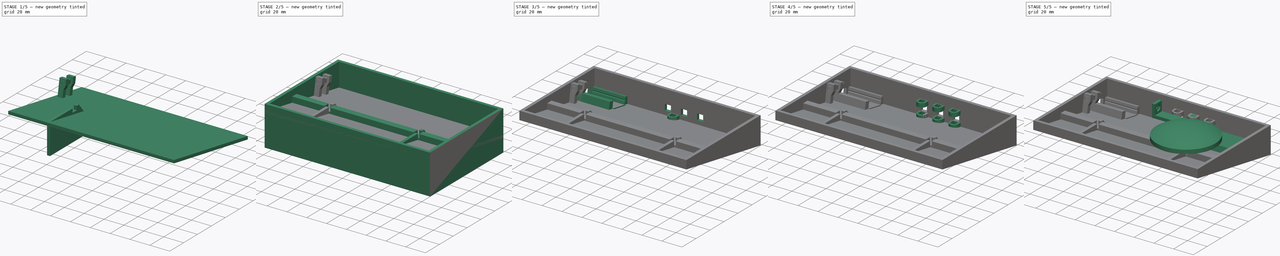
[diagram: build sequence overview — one tinted view per stage of 5, left to right]
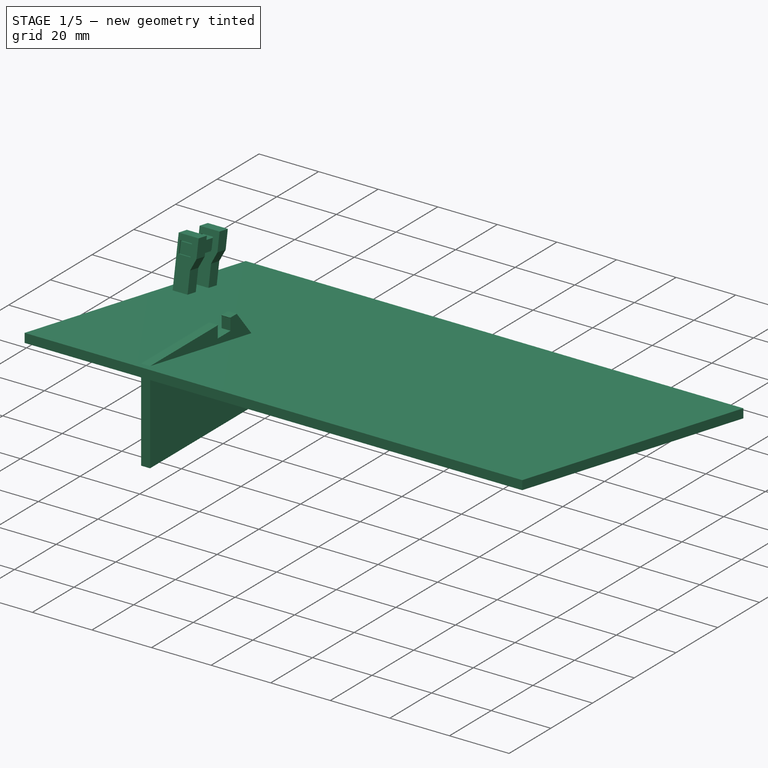
[diagram: stage 1 of 5 — iso view after this stage's code; geometry added in this stage tinted green]
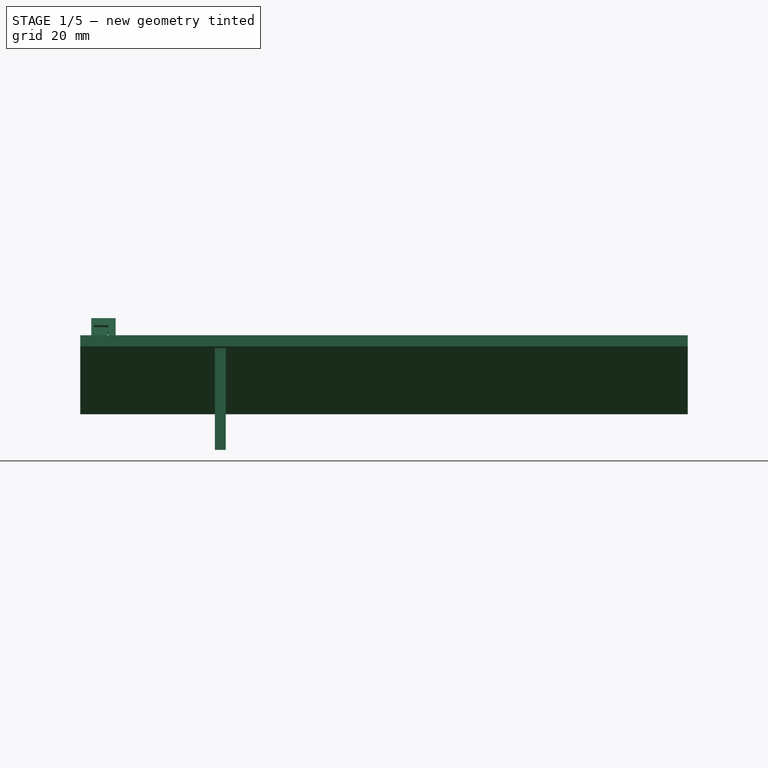
[diagram: stage 1 of 5 — front view after this stage's code; geometry added in this stage tinted green]
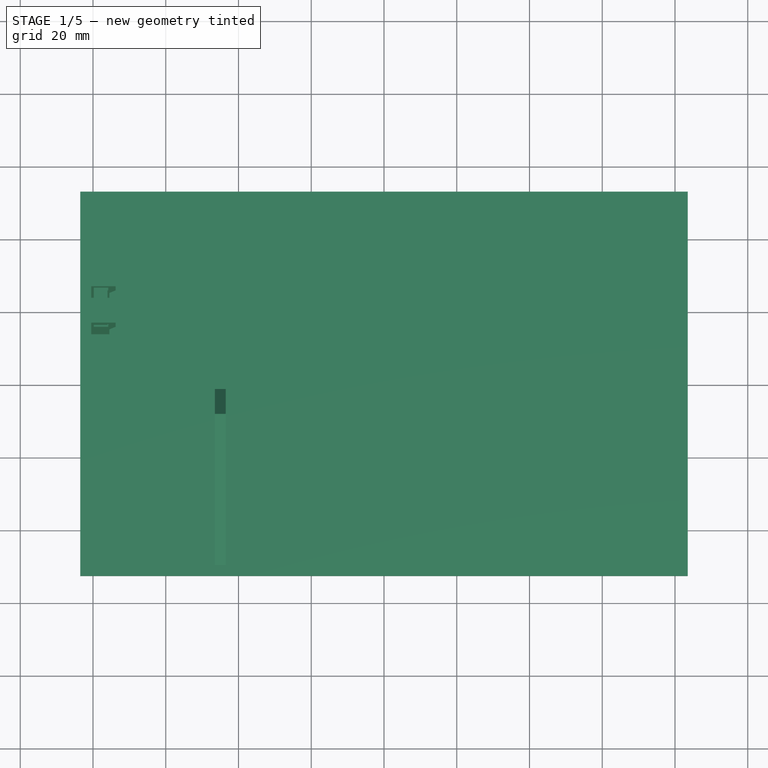
[diagram: stage 1 of 5 — top view after this stage's code; geometry added in this stage tinted green]
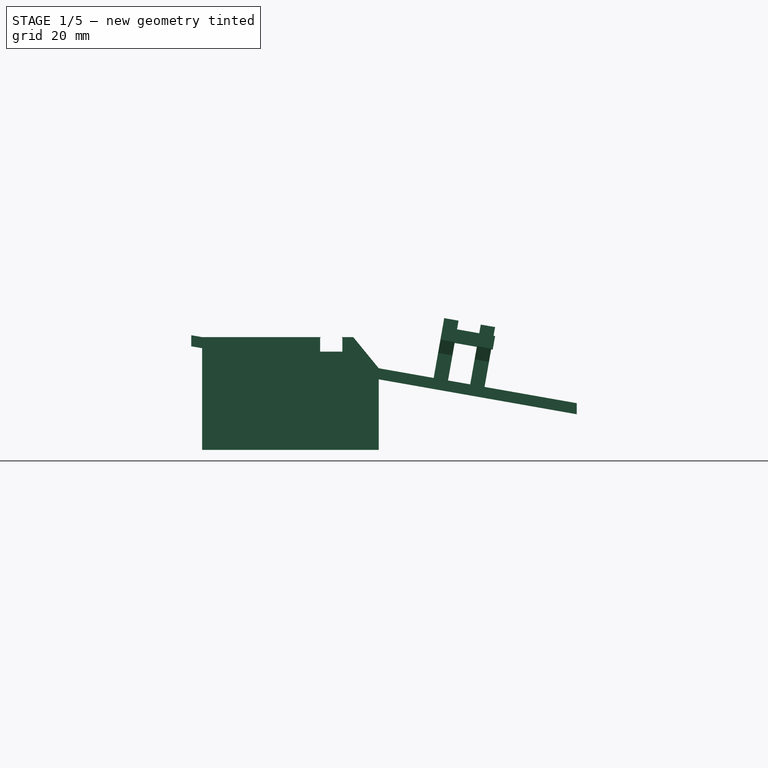
[diagram: stage 1 of 5 — right view after this stage's code; geometry added in this stage tinted green]
FCSTD DOCUMENT  (FreeCAD 1.0R39285 (Git))
Label: Pedal
License: All rights reserved
LicenseURL: https://en.wikipedia.org/wiki/All_rights_reserved
objects: Sketcher::SketchObject×17, Part::Extrusion×14, Part::MultiFuse×10, PartDesign::Body×8, PartDesign::FeatureBase×7, Part::Mirroring×4, Part::Part2DObjectPython×3, PartDesign::Pocket×3, Part::Box×3, Part::Cut×2, Part::FeaturePython×2, PartDesign::Hole×2, Part::Revolution×1, Part::Cylinder×1, PartDesign::Pad×1, PartDesign::Thickness×1, Spreadsheet::Sheet×1
note: 117 computed .brp shape members not serialized (recipe doc carries the construction recipe); baked Part::Feature solids carry a one-line shape summary decoded from their .brp

FEATURE [Part::Cylinder] Cylinder  label="Thin"
  Angle = 360
  AttacherType = Attacher::AttachEngine3D
  FirstAngle = 0
  Height = 15
  Placement = pos=(-45,-15,-3) rot=(0,0,1;0rad)
  Radius = 13
  SecondAngle = 0
  expr: .Placement.Base.x = -<<dim>>.mushroom_x
  expr: .Placement.Base.y = -<<dim>>.mushroom_y
  expr: .Placement.Base.z = -<<dim>>.button_depth + <<dim>>.stem_vertical_offset
  expr: Height = 15 mm
  expr: Radius = <<dim>>.stem_radius
FEATURE [Sketcher::SketchObject] Sketch003
  ArcFitTolerance = 1e-06
  ExternalGeometry = -> [Sketch]
  FullyConstrained = true
  MakeInternals = false
  expr: Constraints[10] = <<dim>>.lid_tol
  expr: Constraints[11] = <<dim>>.lid_tol
  expr: Constraints[8] = <<dim>>.lid_tol
  expr: Constraints[9] = <<dim>>.lid_tol
  sketch-geometry (4):
    g0: LineSegment StartX=-83.5 StartY=53 StartZ=0 EndX=-83.5 EndY=-53 EndZ=0
    g1: LineSegment StartX=-83.5 StartY=-53 StartZ=0 EndX=83.5 EndY=-53 EndZ=0
    g2: LineSegment StartX=83.5 StartY=-53 StartZ=0 EndX=83.5 EndY=53 EndZ=0
    g3: LineSegment StartX=83.5 StartY=53 StartZ=0 EndX=-83.5 EndY=53 EndZ=0
  constraints (12):
    c: Coincident(g0,g1)
    c: Coincident(g1,g2)
    c: Coincident(g2,g3)
    c: Coincident(g3,g0)
    c: Vertical(g0)
    c: Vertical(g2)
    c: Horizontal(g1)
    c: Horizontal(g3)
    c: DistanceX(g-4,g0) = 0
    c: DistanceX(g2,g-6) = 0
    c: DistanceY(g0,g-4) = 0
    c: DistanceY(g-5,g0) = 0
FEATURE [PartDesign::Pad] Pad
  Direction = (0,0,1)
  Length = 40
  Length2 = 10
  Profile = -> Sketch003
  ReferenceAxis = -> Sketch003 [N_Axis]
  Refine = true
  Reversed = true
  Suppressed = false
  Type = 0
FEATURE [PartDesign::Thickness] Thickness
  Base = -> Pad [Face5]
  BaseFeature = -> Pad
  Intersection = false
  Join = 1
  Mode = 0
  Refine = true
  Reversed = true
  SupportTransform = false
  Suppressed = false
  Value = 3
  expr: Value = <<dim>>.wall_thickness
FEATURE [Part::Mirroring] Part__Mirroring  label="Thin (Mirror #1)"
  Base = (4.76837e-07,-15,5.5)
  Normal = (1,0,-1.19209e-07)
  Source = -> Cylinder
FEATURE [Sketcher::SketchObject] Sketch004
  ArcFitTolerance = 1e-06
  ExternalGeometry = -> [Part__Mirroring,Thickness]
  FullyConstrained = true
  MakeInternals = false
  Placement = pos=(0,0,0) rot=(0.57735,0.57735,0.57735;2.0944rad)
  expr: Constraints[19] = <<dim>>.snap_action
  expr: Constraints[29] = <<dim>>.button_depth
  expr: Constraints[30] = <<dim>>.snap_action
  expr: Constraints[31] = <<dim>>.snap_action
  expr: Constraints[4] = <<dim>>.button_height
  expr: Constraints[5] = <<dim>>.button_length
  expr: Constraints[7] = <<dim>>.contact_offset
  sketch-geometry (15):
    g0: LineSegment StartX=-50 StartY=-6 StartZ=0 EndX=-17.55 EndY=-6 EndZ=0
    g1: LineSegment StartX=-17.55 StartY=-10 StartZ=0 EndX=-11.45 EndY=-10 EndZ=0
    g2: LineSegment StartX=-1.45 StartY=-37 StartZ=0 EndX=-50 EndY=-37 EndZ=0
    g3: LineSegment StartX=-50 StartY=-37 StartZ=0 EndX=-50 EndY=-6 EndZ=0
    g4: GeomPoint [constr] X=-14.5 Y=-10 Z=0
    g5: LineSegment StartX=-8.45 StartY=-6 StartZ=0 EndX=-1.45 EndY=-14.5607 EndZ=0
    g6: LineSegment StartX=-11.45 StartY=-6 StartZ=0 EndX=-8.45 EndY=-6 EndZ=0
    g7: LineSegment StartX=-1.45 StartY=-14.5607 StartZ=0 EndX=-1.45 EndY=-37 EndZ=0
    g8: LineSegment StartX=-17.55 StartY=-6 StartZ=0 EndX=-17.35 EndY=-6 EndZ=0
    g9: LineSegment StartX=-17.35 StartY=-6 StartZ=0 EndX=-17.55 EndY=-6.2 EndZ=0
    g10: LineSegment StartX=-17.55 StartY=-6.2 StartZ=0 EndX=-17.55 EndY=-10 EndZ=0
    g11: LineSegment StartX=-11.45 StartY=-6 StartZ=0 EndX=-11.65 EndY=-6 EndZ=0
    g12: LineSegment StartX=-11.65 StartY=-6 StartZ=0 EndX=-11.45 EndY=-6.2 EndZ=0
    g13: LineSegment StartX=-11.45 StartY=-6.2 StartZ=0 EndX=-11.45 EndY=-10 EndZ=0
    g14: LineSegment [constr] StartX=-53 StartY=-5.47102 StartZ=0 EndX=0 EndY=-14.8163 EndZ=0
  constraints (43):
    c: Horizontal(g0)
    c: Horizontal(g1)
    c: Coincident(g3,g0)
    c: Horizontal(g0,g6)
    c: DistanceY(g1,g6) = 4
    c: DistanceX(g1,g1) = 6.1
    c: Symmetric(g1,g1,g4)
    c: DistanceX(g-4,g4) = 0.5
    c: Coincident(g6,g5)
    c: Horizontal(g6)
    c: Coincident(g7,g5)
    c: Vertical(g7)
    c: DistanceX(g6,g6) = 3
    c: Coincident(g0,g8)
    c: Horizontal(g8)
    c: Coincident(g8,g9)
    c: Coincident(g10,g9)
    c: Coincident(g10,g1)
    c: Vertical(g10)
    c: DistanceY(g9,g0) = 0.2
    c: Vertical(g0,g9)
    c: Horizontal(g11)
    c: Coincident(g11,g6)
    c: Coincident(g11,g12)
    c: Coincident(g12,g13)
    c: Coincident(g13,g1)
    c: Vertical(g13)
    c: Vertical(g6,g12)
    c: Horizontal(g12,g9)
    c: Distance(g0,g-1) = 6
    c: Distance(g8,g8) = 0.2
    c: DistanceX(g11,g11) = 0.2
    c: Horizontal(g2)
    c: Coincident(g2,g3)
    c: Vertical(g3)
    c: Coincident(g2,g-5)
    c: PointOnObject(g14,g-6)
    c: PointOnObject(g14,g-2)
    c: PointOnObject(g0,g14)
    c: Angle(g14,g0) = 0.174533
    c: PointOnObject(g5,g14)
    c: Coincident(g7,g2)
    c: DistanceX(g5,g5) = 7
FEATURE [Part::Extrusion] Extrude002  label="Ridge"
  Base = -> Sketch004
  Dir = (1,0,0)
  DirMode = 2
  FaceMakerClass = Part::FaceMakerBullseye
  FaceMakerMode = 3
  LengthFwd = 3
  LengthRev = 0
  Placement = pos=(-45,0,0) rot=(0,0,1;0rad)
  Solid = true
  Symmetric = true
  expr: .Placement.Base.x = -<<dim>>.mushroom_x
FEATURE [Part::Extrusion] Extrude004
  Base = -> Sketch006
  Dir = (1,0,0)
  DirMode = 2
  FaceMakerClass = Part::FaceMakerBullseye
  FaceMakerMode = 3
  LengthFwd = 167
  LengthRev = 0
  Solid = true
  Symmetric = true
  expr: LengthFwd = <<dim>>.total_width
FEATURE [Sketcher::SketchObject] Sketch021
  ArcFitTolerance = 1e-06
  AttachmentOffset = pos=(0,0,0) rot=(0,0,-1;1.5708rad)
  AttachmentSupport = -> [Fusion008]
  FullyConstrained = true
  MakeInternals = false
  MapMode = 6
  Placement = pos=(-83.5,23.7019,-18.9956) rot=(1,0,0;1.39626rad)
  expr: Constraints[10] = <<dim>>.switch_depth
  expr: Constraints[11] = <<dim>>.switch_length
  expr: Constraints[32] = <<dim>>.switch_tab
  expr: Constraints[41] = <<dim>>.board_elevation + <<dim>>.board_to_header
  expr: Constraints[9] = <<dim>>.wall_thickness
  sketch-geometry (15):
    g0: LineSegment StartX=3 StartY=0 StartZ=0 EndX=8 EndY=0 EndZ=0
    g1: LineSegment StartX=8 StartY=0 StartZ=0 EndX=8 EndY=10.7 EndZ=0
    g2: LineSegment StartX=8 StartY=10.7 StartZ=0 EndX=3 EndY=10.7 EndZ=0
    g3: LineSegment StartX=3 StartY=10.7 StartZ=0 EndX=3 EndY=0 EndZ=0
    g4: LineSegment StartX=3.7 StartY=10.7 StartZ=0 EndX=3.7 EndY=14.7 EndZ=0
    g5: LineSegment StartX=3.7 StartY=14.7 StartZ=0 EndX=7.7 EndY=14.7 EndZ=0
    g6: LineSegment StartX=7.7 StartY=14.7 StartZ=0 EndX=7.7 EndY=10.7 EndZ=0
    g7: LineSegment StartX=7.7 StartY=10.7 StartZ=0 EndX=9.7 EndY=10.7 EndZ=0
    g8: LineSegment StartX=9.7 StartY=10.7 StartZ=0 EndX=9.7 EndY=16.7 EndZ=0
    g9: LineSegment StartX=9.7 StartY=16.7 StartZ=0 EndX=3 EndY=16.7 EndZ=0
    g10: LineSegment StartX=3 StartY=16.7 StartZ=0 EndX=3 EndY=10.7 EndZ=0
    g11: LineSegment StartX=3 StartY=10.7 StartZ=0 EndX=3.7 EndY=10.7 EndZ=0
    g12: LineSegment StartX=9.7 StartY=10.7 StartZ=0 EndX=8 EndY=7 EndZ=0
    g13: LineSegment StartX=8 StartY=7 StartZ=0 EndX=8 EndY=10.7 EndZ=0
    g14: LineSegment StartX=8 StartY=10.7 StartZ=0 EndX=9.7 EndY=10.7 EndZ=0
  constraints (42):
    c: Coincident(g0,g1)
    c: Coincident(g1,g2)
    c: Coincident(g2,g3)
    c: Coincident(g3,g0)
    c: Horizontal(g0)
    c: Horizontal(g2)
    c: Vertical(g1)
    c: Vertical(g3)
    c: PointOnObject(g0,g-1)
    c: Distance(g0,g-2) = 3
    c: DistanceX(g2,g2) = 5
    c: DistanceY(g1,g1) = 10.7
    c: PointOnObject(g4,g2)
    c: Vertical(g4)
    c: Coincident(g4,g5)
    c: Horizontal(g5)
    c: Coincident(g5,g6)
    c: PointOnObject(g6,g2)
    c: Vertical(g6)
    c: Coincident(g6,g7)
    c: Horizontal(g7)
    c: Coincident(g7,g8)
    c: Vertical(g8)
    c: Coincident(g8,g9)
    c: Horizontal(g9)
    c: Coincident(g9,g10)
    c: Vertical(g10)
    c: Coincident(g10,g11)
    c: Coincident(g11,g4)
    c: DistanceX(g5,g5) = 4
    c: DistanceY(g6,g6) = 4
    c: Distance(g4,g9) = 2
    c: Distance(g4,g10) = 0.7
    c: Distance(g5,g8) = 2
    c: Coincident(g7,g12)
    c: PointOnObject(g12,g1)
    c: Coincident(g12,g13)
    c: Coincident(g13,g1)
    c: Coincident(g13,g14)
    c: Coincident(g14,g12)
    c: Coincident(g10,g2)
    c: Distance(g12,g-1) = 7
FEATURE [Part::Extrusion] Extrude013
  Base = -> Sketch021
  Dir = (0,-0.984808,0.173648)
  DirMode = 2
  FaceMakerClass = Part::FaceMakerBullseye
  FaceMakerMode = 3
  LengthFwd = 0
  LengthRev = 4
  Solid = true
  Symmetric = false
  expr: .Placement.Base.y = 0
FEATURE [Part::Extrusion] Extrude014
  Base = -> Sketch021
  Dir = (0,-0.984808,0.173648)
  DirMode = 2
  FaceMakerClass = Part::FaceMakerBullseye
  FaceMakerMode = 3
  LengthFwd = 0
  LengthRev = 4
  Placement = pos=(0,-6.10581,1.07662) rot=(0,0,1;0rad)
  Reversed = true
  Solid = true
  Symmetric = false
  expr: .Placement.Base.y = -(<<dim>>.switch_width + <<dim>>.tol) * cos(10)
  expr: .Placement.Base.z = (<<dim>>.switch_width + <<dim>>.tol) * sin(10)
FEATURE [Part::MultiFuse] Fusion009  label="SwitchLock"
  Refine = true
  Shapes = -> [Extrude013,Extrude014]
FEATURE [Part::Box] Box002  label="SwitchStop"
  AttacherType = Attacher::AttachEngine3D
  Height = 3.8
  Length = 3.8
  Placement = pos=(-79.8,16,-7) rot=(1,0,0;-0.174533rad)
  Width = 14.1
  expr: .Placement.Base.x = -<<dim>>.total_width / 2 + 3 mm + <<dim>>.switch_tab
  expr: Width = <<dim>>.switch_width + 2 * 4 mm
note: 3 file-system paths scrubbed to <path> (originals preserved in the JSON sidecar)
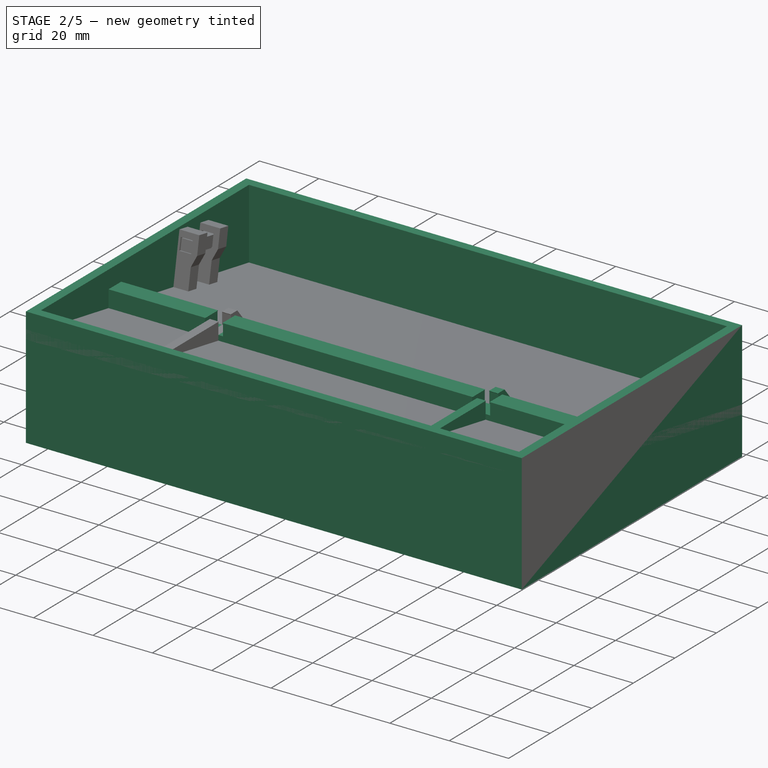
[diagram: stage 2 of 5 — iso view after this stage's code; geometry added in this stage tinted green]
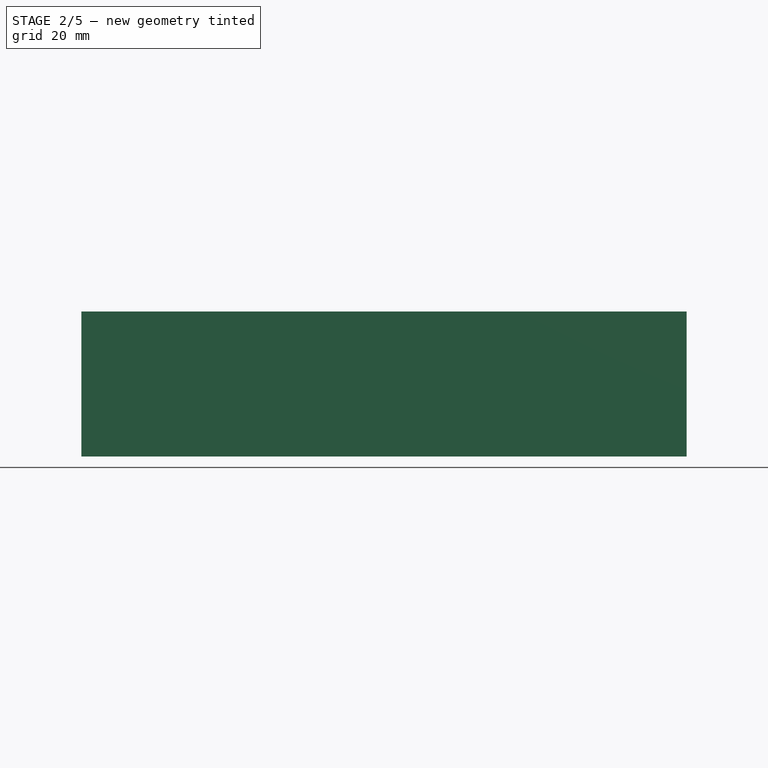
[diagram: stage 2 of 5 — front view after this stage's code; geometry added in this stage tinted green]
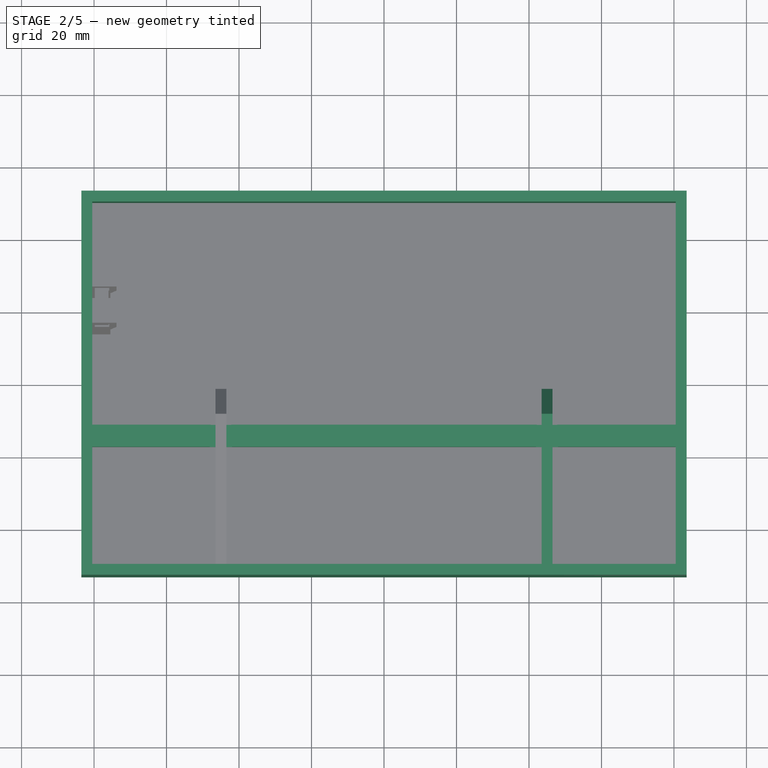
[diagram: stage 2 of 5 — top view after this stage's code; geometry added in this stage tinted green]
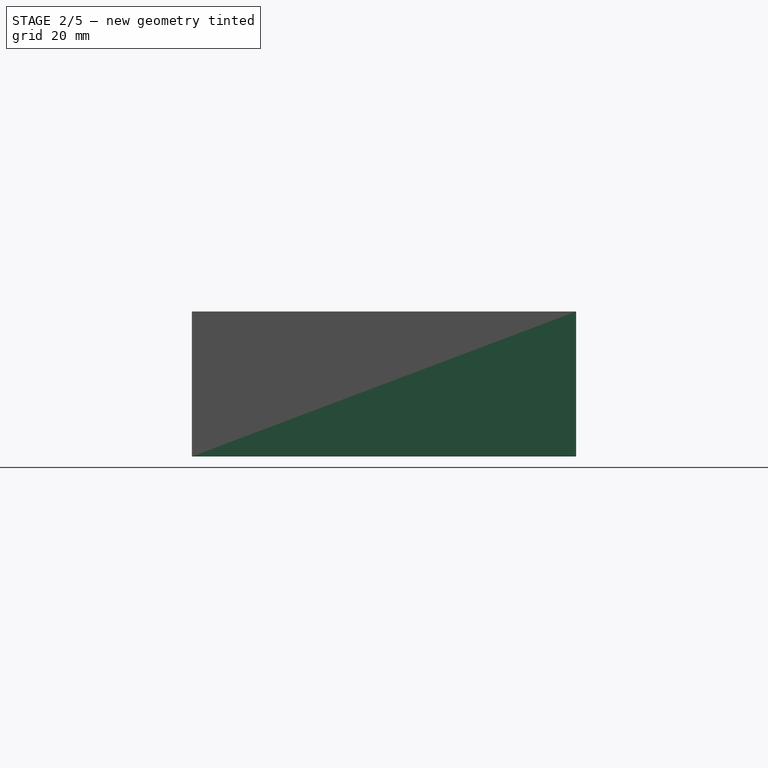
[diagram: stage 2 of 5 — right view after this stage's code; geometry added in this stage tinted green]
FEATURE [Sketcher::SketchObject] Sketch
  ArcFitTolerance = 1e-06
  FullyConstrained = true
  MakeInternals = false
  expr: Constraints[18] = <<dim>>.trench_width
  expr: Constraints[30] = <<dim>>.blade_width
  expr: Constraints[56] = <<dim>>.padding_left
  expr: Constraints[57] = <<dim>>.mushroom_bottom
  expr: Constraints[58] = <<dim>>.mushroom_x
  expr: Constraints[59] = <<dim>>.mushroom_centre
  expr: Constraints[60] = <<dim>>.stem_radius
  expr: Constraints[61] = <<dim>>.mushroom_radius
  expr: Constraints[69] = <<dim>>.trench_width
  sketch-geometry (26):
    g0: LineSegment StartX=-83.5 StartY=53 StartZ=0 EndX=-83.5 EndY=-53 EndZ=0
    g1: LineSegment StartX=-83.5 StartY=-53 StartZ=0 EndX=83.5 EndY=-53 EndZ=0
    g2: LineSegment StartX=83.5 StartY=-53 StartZ=0 EndX=83.5 EndY=53 EndZ=0
    g3: LineSegment StartX=83.5 StartY=53 StartZ=0 EndX=-83.5 EndY=53 EndZ=0
    g4: LineSegment StartX=-27.5 StartY=9.36699 StartZ=0 EndX=-27.5 EndY=33 EndZ=0
    g5: LineSegment StartX=-27.5 StartY=33 StartZ=0 EndX=-26.5 EndY=33 EndZ=0
    g6: LineSegment StartX=-26.5 StartY=33 StartZ=0 EndX=-26.5 EndY=9.87469 EndZ=0
    g7: LineSegment StartX=-63.5 StartY=9.87469 StartZ=0 EndX=-63.5 EndY=33 EndZ=0
    g8: LineSegment StartX=-63.5 StartY=33 StartZ=0 EndX=-62.5 EndY=33 EndZ=0
    g9: LineSegment StartX=-62.5 StartY=33 StartZ=0 EndX=-62.5 EndY=9.36699 EndZ=0
    g10: ArcOfCircle CenterX=-45 CenterY=-15 CenterZ=0 NormalX=0 NormalY=0 NormalZ=1 AngleXU=0 Radius=31 StartAngle=2.21027 EndAngle=7.21451
    g11: LineSegment [constr] StartX=-63.5 StartY=9.87469 StartZ=0 EndX=-45 EndY=-15 EndZ=0
    g12: ArcOfCircle CenterX=-45 CenterY=-15 CenterZ=0 NormalX=0 NormalY=0 NormalZ=1 AngleXU=0 Radius=30 StartAngle=2.19362 EndAngle=7.23116
    g13: Circle CenterX=-45 CenterY=-15 CenterZ=0 NormalX=0 NormalY=0 NormalZ=1 AngleXU=0 Radius=13
    g14: LineSegment StartX=27.5 StartY=9.36699 StartZ=0 EndX=27.5 EndY=33 EndZ=0
    g15: LineSegment StartX=27.5 StartY=33 StartZ=0 EndX=26.5 EndY=33 EndZ=0
    g16: LineSegment StartX=26.5 StartY=33 StartZ=0 EndX=26.5 EndY=9.87469 EndZ=0
    g17: LineSegment StartX=63.5 StartY=9.87469 StartZ=0 EndX=63.5 EndY=33 EndZ=0
    g18: LineSegment StartX=63.5 StartY=33 StartZ=0 EndX=62.5 EndY=33 EndZ=0
    g19: LineSegment StartX=62.5 StartY=33 StartZ=0 EndX=62.5 EndY=9.36699 EndZ=0
    g20: ArcOfCircle CenterX=45 CenterY=-15 CenterZ=0 NormalX=0 NormalY=0 NormalZ=1 AngleXU=0 Radius=31 StartAngle=2.21027 EndAngle=7.21451
    g21: LineSegment [constr] StartX=63.5 StartY=9.87469 StartZ=0 EndX=45 EndY=-15 EndZ=0
    g22: ArcOfCircle CenterX=45 CenterY=-15 CenterZ=0 NormalX=0 NormalY=0 NormalZ=1 AngleXU=0 Radius=30 StartAngle=2.19362 EndAngle=7.23116
    g23: Circle CenterX=45 CenterY=-15 CenterZ=0 NormalX=0 NormalY=0 NormalZ=1 AngleXU=0 Radius=13
    g24: LineSegment [constr] StartX=-45 StartY=-15 StartZ=0 EndX=-45 EndY=-46 EndZ=0
    g25: GeomPoint X=-45 Y=-45 Z=0
  constraints (70):
    c: Coincident(g0,g1)
    c: Coincident(g1,g2)
    c: Coincident(g2,g3)
    c: Coincident(g3,g0)
    c: Vertical(g0)
    c: Horizontal(g1)
    c: Symmetric(g2,g0,g-2)
    c: Symmetric(g1,g2,g-1)
    c: Vertical(g4)
    c: Coincident(g4,g5)
    c: Coincident(g5,g6)
    c: Vertical(g6)
    c: Horizontal(g5)
    c: Vertical(g7)
    c: Coincident(g7,g8)
    c: Coincident(g8,g9)
    c: Vertical(g9)
    c: Horizontal(g8)
    c: DistanceX(g8,g8) = 1
    c: Horizontal(g4,g8)
    c: Distance(g7,g3) = 20
    c: Coincident(g10,g7)
    c: Coincident(g10,g6)
    c: Horizontal(g6,g7)
    c: Coincident(g11,g7)
    c: Coincident(g11,g10)
    c: Coincident(g12,g9)
    c: Coincident(g12,g4)
    c: Coincident(g12,g10)
    c: Equal(g8,g5)
    c: DistanceX(g8,g4) = 35
    c: Coincident(g13,g10)
    c: Vertical(g14)
    c: Coincident(g14,g15)
    c: Coincident(g15,g16)
    c: Vertical(g16)
    c: Horizontal(g15)
    c: Vertical(g17)
    c: Coincident(g17,g18)
    c: Coincident(g18,g19)
    c: Vertical(g19)
    c: Horizontal(g18)
    c: Coincident(g20,g17)
    c: Coincident(g20,g16)
    c: Coincident(g21,g17)
    c: Coincident(g21,g20)
    c: Coincident(g22,g19)
    c: Coincident(g22,g14)
    c: Coincident(g22,g20)
    c: Equal(g18,g15)
    c: Coincident(g23,g20)
    c: Symmetric(g15,g5,g-2)
    c: Symmetric(g20,g10,g-2)
    c: Equal(g8,g15)
    c: Symmetric(g17,g7,g-2)
    c: Horizontal(g17,g14)
    c: Distance(g7,g0) = 20
    c: Distance(g10,g1) = 38
    c: Distance(g10,g-2) = 45
    c: Distance(g10,g-1) = 15
    c: Radius(g13) = 13
    c: Radius(g12) = 30
    c: Equal(g23,g13)
    c: Equal(g22,g12)
    c: Coincident(g24,g10)
    c: PointOnObject(g24,g10)
    c: Vertical(g24)
    c: PointOnObject(g25,g24)
    c: PointOnObject(g25,g12)
    c: DistanceY(g24,g25) = 1
FEATURE [Part::Extrusion] Extrude  label="TopPlate"
  Base = -> Sketch
  Dir = (0,0,1)
  DirMode = 2
  FaceMakerClass = Part::FaceMakerBullseye
  FaceMakerMode = 3
  LengthFwd = 3
  LengthRev = 0
  Solid = true
  Symmetric = false
  expr: LengthFwd = <<dim>>.plate_thickness
FEATURE [Sketcher::SketchObject] Sketch001
  ArcFitTolerance = 1e-06
  FullyConstrained = true
  MakeInternals = false
  Placement = pos=(0,0,0) rot=(0.57735,0.57735,0.57735;2.0944rad)
  expr: Constraints[14] = <<dim>>.mushroom_base
  expr: Constraints[15] = <<dim>>.mushroom_radius
  expr: Constraints[3] = <<dim>>.mushroom_height
  sketch-geometry (6):
    g0: ArcOfCircle [constr] CenterX=2.8e-15 CenterY=-45.5 CenterZ=0 NormalX=0 NormalY=0 NormalZ=1 AngleXU=0 Radius=54.5 StartAngle=0.987883 EndAngle=2.15371
    g1: GeomPoint [constr] X=2e-15 Y=9 Z=0
    g2: LineSegment StartX=30 StartY=-4 StartZ=0 EndX=30 EndY=0 EndZ=0
    g3: ArcOfCircle CenterX=-1.3e-15 CenterY=-45.5 CenterZ=0 NormalX=0 NormalY=0 NormalZ=1 AngleXU=0 Radius=54.5 StartAngle=0.987883 EndAngle=1.5708
    g4: LineSegment StartX=30 StartY=-4 StartZ=0 EndX=0 EndY=-4 EndZ=0
    g5: LineSegment StartX=0 StartY=-4 StartZ=0 EndX=2e-15 EndY=9 EndZ=0
  constraints (16):
    c: PointOnObject(g0,g-1)
    c: Symmetric(g0,g0,g-2)
    c: PointOnObject(g1,g0)
    c: DistanceY(g-1,g1) = 9
    c: PointOnObject(g1,g-2)
    c: Coincident(g2,g0)
    c: Vertical(g2)
    c: Coincident(g3,g1)
    c: Tangent(g3,g0) = -1.5708
    c: Coincident(g2,g4)
    c: PointOnObject(g4,g-2)
    c: Horizontal(g4)
    c: Coincident(g4,g5)
    c: Coincident(g5,g1)
    c: Distance(g2,g2) = 4
    c: DistanceX(g4,g4) = 30
FEATURE [Part::Revolution] Revolve  label="MushroomButton"
  Angle = 360
  Axis = (0,0,1)
  Base = (0,0,0)
  FaceMakerClass = Part::FaceMakerBullseye
  Placement = pos=(-45,-15,7) rot=(0,0,1;0rad)
  Solid = true
  Source = -> Sketch001
  Symmetric = false
  expr: .Placement.Base.x = -<<dim>>.mushroom_x
  expr: .Placement.Base.y = -<<dim>>.mushroom_y
  expr: .Placement.Base.z = <<dim>>.mushroom_base + <<dim>>.plate_thickness
FEATURE [Sketcher::SketchObject] Sketch002
  ArcFitTolerance = 1e-06
  ExternalGeometry = -> [Sketch]
  FullyConstrained = true
  MakeInternals = false
  sketch-geometry (8):
    g0: LineSegment StartX=-86.5 StartY=56 StartZ=0 EndX=-86.5 EndY=-56 EndZ=0
    g1: LineSegment StartX=-86.5 StartY=-56 StartZ=0 EndX=86.5 EndY=-56 EndZ=0
    g2: LineSegment StartX=86.5 StartY=-56 StartZ=0 EndX=86.5 EndY=56 EndZ=0
    g3: LineSegment StartX=86.5 StartY=56 StartZ=0 EndX=-86.5 EndY=56 EndZ=0
    g4: LineSegment StartX=-83.5 StartY=53 StartZ=0 EndX=-83.5 EndY=-53 EndZ=0
    g5: LineSegment StartX=-83.5 StartY=-53 StartZ=0 EndX=83.5 EndY=-53 EndZ=0
    g6: LineSegment StartX=83.5 StartY=-53 StartZ=0 EndX=83.5 EndY=53 EndZ=0
    g7: LineSegment StartX=83.5 StartY=53 StartZ=0 EndX=-83.5 EndY=53 EndZ=0
  constraints (22):
    c: Coincident(g0,g1)
    c: Coincident(g1,g2)
    c: Coincident(g2,g3)
    c: Coincident(g3,g0)
    c: Vertical(g0)
    c: Vertical(g2)
    c: Horizontal(g1)
    c: Horizontal(g3)
    c: DistanceX(g0,g-4) = 3
    c: DistanceX(g-5,g2) = 3
    c: DistanceY(g-4,g0) = 3
    c: DistanceY(g0,g-6) = 3
    c: Coincident(g4,g5)
    c: Coincident(g5,g6)
    c: Coincident(g6,g7)
    c: Coincident(g7,g4)
    c: Vertical(g4)
    c: Vertical(g6)
    c: Horizontal(g5)
    c: Horizontal(g7)
    c: Coincident(g4,g-4)
    c: Coincident(g5,g-6)
FEATURE [Part::Extrusion] Extrude001  label="Notch"
  Base = -> Sketch002
  Dir = (0,0,1)
  DirMode = 2
  FaceMakerClass = Part::FaceMakerBullseye
  FaceMakerMode = 3
  LengthFwd = 3
  LengthRev = 6
  Solid = true
  Symmetric = false
  expr: LengthRev = <<dim>>.rim
FEATURE [Part::MultiFuse] Fusion001  label="Lid"
  Refine = true
  Shapes = -> [Extrude,Extrude001]
FEATURE [PartDesign::Body] Body  label="Box"
  AllowCompound = false
  Group = -> [Sketch003,Pad,Thickness]
  Origin = -> Origin
  Tip = -> Thickness
FEATURE [Part::Cut] Cut  label="Mushroom"
  Base = -> Revolve
  Refine = true
  Tool = -> Cylinder
FEATURE [Sketcher::SketchObject] Sketch005
  ArcFitTolerance = 1e-06
  ExternalGeometry = -> [Fusion001,Thickness,Extrude002,Cylinder,Cut]
  FullyConstrained = true
  MakeInternals = false
  Placement = pos=(0,0,0) rot=(1,0,0;1.5708rad)
  expr: Constraints[17] = <<dim>>.button_width
  expr: Constraints[24] = <<dim>>.snap_action
  expr: Constraints[25] = <<dim>>.snap_action
  expr: Constraints[34] = <<dim>>.snap_action
  sketch-geometry (13):
    g0: LineSegment StartX=-80.5 StartY=-6 StartZ=0 EndX=-48.05 EndY=-6 EndZ=0
    g1: LineSegment StartX=-48.05 StartY=-10 StartZ=0 EndX=-41.95 EndY=-10 EndZ=0
    g2: LineSegment StartX=-41.95 StartY=-6 StartZ=0 EndX=7.1e-15 EndY=-6 EndZ=0
    g3: LineSegment StartX=7.1e-15 StartY=-6 StartZ=0 EndX=7.1e-15 EndY=-37 EndZ=0
    g4: LineSegment StartX=7.1e-15 StartY=-37 StartZ=0 EndX=-80.5 EndY=-37 EndZ=0
    g5: LineSegment StartX=-80.5 StartY=-37 StartZ=0 EndX=-80.5 EndY=-6 EndZ=0
    g6: GeomPoint X=-45 Y=-10 Z=0
    g7: LineSegment StartX=-48.05 StartY=-6 StartZ=0 EndX=-47.85 EndY=-6 EndZ=0
    g8: LineSegment StartX=-47.85 StartY=-6 StartZ=0 EndX=-48.05 EndY=-6.2 EndZ=0
    g9: LineSegment StartX=-48.05 StartY=-6.2 StartZ=0 EndX=-48.05 EndY=-10 EndZ=0
    g10: LineSegment StartX=-41.95 StartY=-6.2 StartZ=0 EndX=-41.95 EndY=-10 EndZ=0
    g11: LineSegment StartX=-41.95 StartY=-6 StartZ=0 EndX=-42.15 EndY=-6 EndZ=0
    g12: LineSegment StartX=-42.15 StartY=-6 StartZ=0 EndX=-41.95 EndY=-6.2 EndZ=0
  constraints (35):
    c: PointOnObject(g0,g-4)
    c: Horizontal(g0)
    c: Horizontal(g2)
    c: Coincident(g2,g3)
    c: Symmetric(g-5,g-5,g3)
    c: Vertical(g3)
    c: Coincident(g3,g4)
    c: Coincident(g4,g-5)
    c: Coincident(g4,g5)
    c: Coincident(g0,g5)
    c: Horizontal(g2,g0)
    c: Vertical(g1,g0)
    c: Vertical(g1,g2)
    c: Horizontal(g1,g1)
    c: Horizontal(g1,g-6)
    c: Symmetric(g1,g1,g6)
    c: Vertical(g-8,g6)
    c: DistanceX(g1,g1) = 6.1
    c: Coincident(g0,g7)
    c: Coincident(g7,g8)
    c: Coincident(g9,g8)
    c: Coincident(g9,g1)
    c: Vertical(g9)
    c: Horizontal(g7)
    c: DistanceX(g7,g7) = 0.2
    c: DistanceY(g8,g7) = 0.2
    c: Coincident(g10,g1)
    c: Vertical(g10)
    c: Horizontal(g10,g8)
    c: Horizontal(g-9,g2)
    c: Coincident(g2,g11)
    c: Horizontal(g11)
    c: Coincident(g11,g12)
    c: Coincident(g12,g10)
    c: DistanceX(g11,g11) = 0.2
FEATURE [Part::Extrusion] Extrude003  label="RidgeH"
  Base = -> Sketch005
  Dir = (0,-1,2e-16)
  DirMode = 2
  FaceMakerClass = Part::FaceMakerBullseye
  FaceMakerMode = 3
  LengthFwd = 6.1
  LengthRev = 0
  Placement = pos=(0,-14.5,0) rot=(0,0,1;0rad)
  Solid = true
  Symmetric = true
  expr: .Placement.Base.y = -<<dim>>.mushroom_y + <<dim>>.contact_offset
  expr: LengthFwd = <<dim>>.button_length
FEATURE [Part::Mirroring] Part__Mirroring003  label="RidgeH (Mirror #4)"
  Base = (0,0,0)
  Normal = (1,0,0)
  Source = -> Extrude003
FEATURE [Part::MultiFuse] Fusion  label="Ridgeh"
  Refine = true
  Shapes = -> [Extrude003,Part__Mirroring003]
FEATURE [Spreadsheet::Sheet] Spreadsheet  label="dim"
  cells = A1='mushroom_x; B1(mushroom_x)==45 mm; A2='mushroom_y; B2(mushroom_y)==15 mm; A3='plate_thickness; B3(plate_thickness)==3 mm; A4='blade_width; B4(blade_width)==35 mm; A5='mushroom_radius; B5(mushroom_radius)==30 mm; A6='stem_radius; B6(stem_radius)==13 mm; A7='trench_width; B7(trench_width)==1 mm; A8='mushroom_height; B8(mushroom_height)==9 mm; A9='mushroom_base; B9(mushroom_base)==4 mm; A10='button_depth; B10(button_depth)==6 mm; A11='mushroom_penetration_margin; B11(mushroom_penetration_margin)==3 mm; A12='stem_vertical_offset; B12(stem_vertical_offset)==3 mm; A13='lid_tol; B13(lid_tol)==0 mm; A14='wall_thickness; B14(wall_thickness)==3 mm; A15='button_height; B15(button_height)==4 mm; A16='button_width; B16(button_width)==6.1 mm; A17='button_length; B17(button_length)==6.1 mm; A18='snap_action; B18(snap_action)==0.2 mm; A19='contact_offset; B19(contact_offset)==0.5 mm; A20='padding_left; B20(padding_left)==20 mm; A21='total_width; B21(total_width)==(mushroom_x + padding_left + trench_width + blade_width / 2) * 2; A22='micro_width; B22(micro_width)==18 mm; A23='micro_length; B23(micro_length)==32.9 mm; A24='micro_basespace; B24(micro_basespace)==5 mm; A25='switch_length; B25(switch_length)==10.7 mm; A26='switch_width; B26(switch_width)==6.1 mm; A27='mushroom_bottom; B27(mushroom_bottom)==38 mm; A28='mushroom_centre; B28(mushroom_centre)==15 mm; A29='half_length; B29(half_length)==mushroom_bottom + mushroom_centre; A30='inclination; B30(inclination)=10; A31='rim; B31(rim)==6 mm; A32='button_sep; B32(button_sep)==10 mm; A33='micro_wallheight; B33(micro_wallheight)==5 mm; A34='micro_wallthickness; B34(micro_wallthickness)==5 mm; A35='board_thickness; B35(board_thickness)==1.6 mm; A36='board_elevation; B36(board_elevation)==3 mm; A37='micro_headersep; B37(micro_headersep)==17.6 mm; A38='board_to_header; B38(board_to_header)==4 mm; A39='stabiliser_thickness; B39(stabiliser_thickness)==3 mm; A40='stabiliser_width; B40(stabiliser_width)==10 mm; A41='stabiliser_reach; B41(stabiliser_reach)==10 mm; A42='stabiliser_pocket; B42(stabiliser_pocket)==2 mm; A43='switch_tab; B43(switch_tab)==0.7 mm; A44='button_xshift; B44(button_xshift)==9 mm; A45='switch_depth; B45(switch_depth)==5 mm; A46='tol; B46(tol)==0.1 mm
FEATURE [Part::Mirroring] Part__Mirroring002  label="Ridge (Mirror #3)"
  Base = (0,0,0)
  Normal = (1,0,0)
  Source = -> Extrude002
FEATURE [Sketcher::SketchObject] Sketch006
  ArcFitTolerance = 1e-06
  FullyConstrained = true
  MakeInternals = false
  Placement = pos=(0,0,0) rot=(0.57735,0.57735,0.57735;2.0944rad)
  expr: Constraints[10] = <<dim>>.half_length
  expr: Constraints[11] = <<dim>>.plate_thickness
  expr: Constraints[12] = <<dim>>.wall_thickness
  expr: Constraints[15] = <<dim>>.half_length
  expr: Constraints[7] = -<<dim>>.inclination
  expr: Constraints[9] = <<dim>>.button_depth
  sketch-geometry (6):
    g0: LineSegment StartX=-53 StartY=-8.5173 StartZ=0 EndX=53 EndY=-27.208 EndZ=0
    g1: LineSegment StartX=-53 StartY=-5.47102 StartZ=0 EndX=-53 EndY=-8.5173 EndZ=0
    g2: LineSegment StartX=-53 StartY=-5.47102 StartZ=0 EndX=53 EndY=-24.1617 EndZ=0
    g3: LineSegment StartX=53 StartY=-24.1617 StartZ=0 EndX=53 EndY=-27.208 EndZ=0
    g4: GeomPoint [constr] X=-50 Y=-6 Z=0
    g5: GeomPoint X=0 Y=-14.8163 Z=0
  constraints (16):
    c: Coincident(g1,g2)
    c: Coincident(g2,g3)
    c: Coincident(g3,g0)
    c: Parallel(g2,g0)
    c: Vertical(g1)
    c: Coincident(g1,g0)
    c: Vertical(g3)
    c: Angle(g2) = -0.174533
    c: PointOnObject(g4,g2)
    c: Distance(g4,g-1) = 6
    c: Distance(g1,g-2) = 53
    c: Distance(g4,g0) = 3
    c: DistanceX(g1,g4) = 3
    c: PointOnObject(g5,g2)
    c: PointOnObject(g5,g-2)
    c: Distance(g0,g-2) = 53
FEATURE [Part::MultiFuse] Fusion002  label="Container"
  Refine = true
  Shapes = -> [Body,Part__Mirroring002,Fusion,Extrude002]
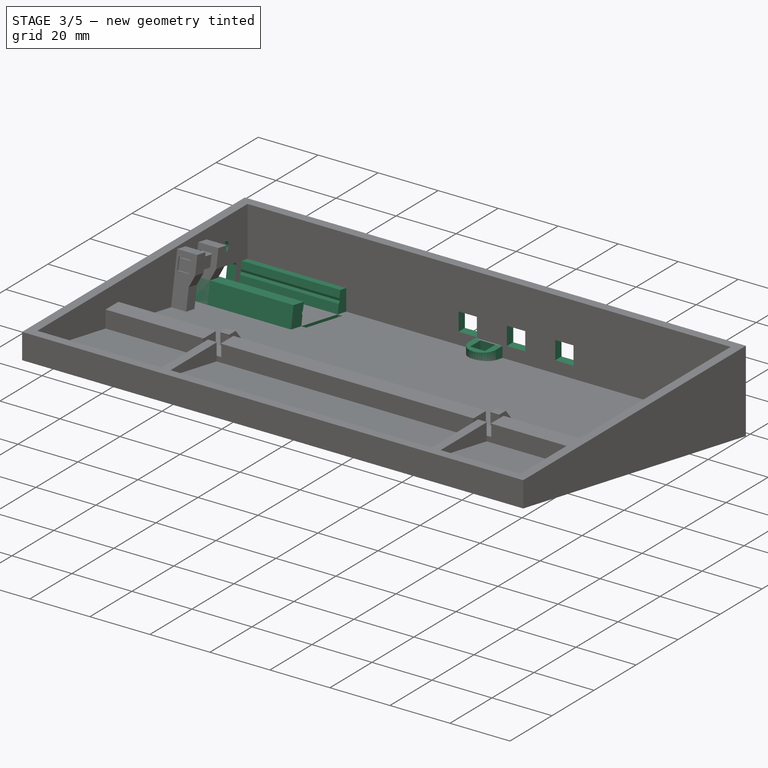
[diagram: stage 3 of 5 — iso view after this stage's code; geometry added in this stage tinted green]
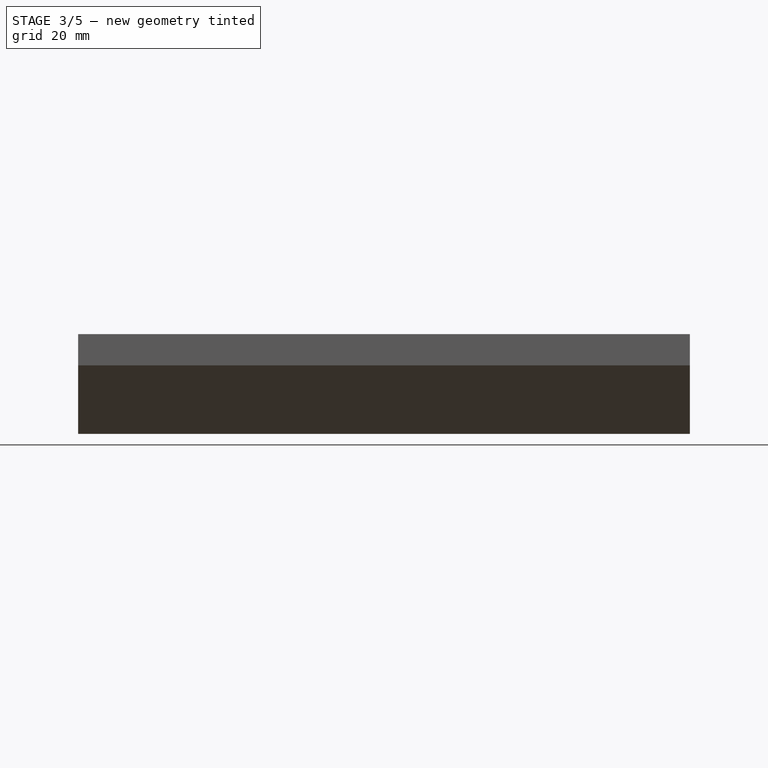
[diagram: stage 3 of 5 — front view after this stage's code; geometry added in this stage tinted green]
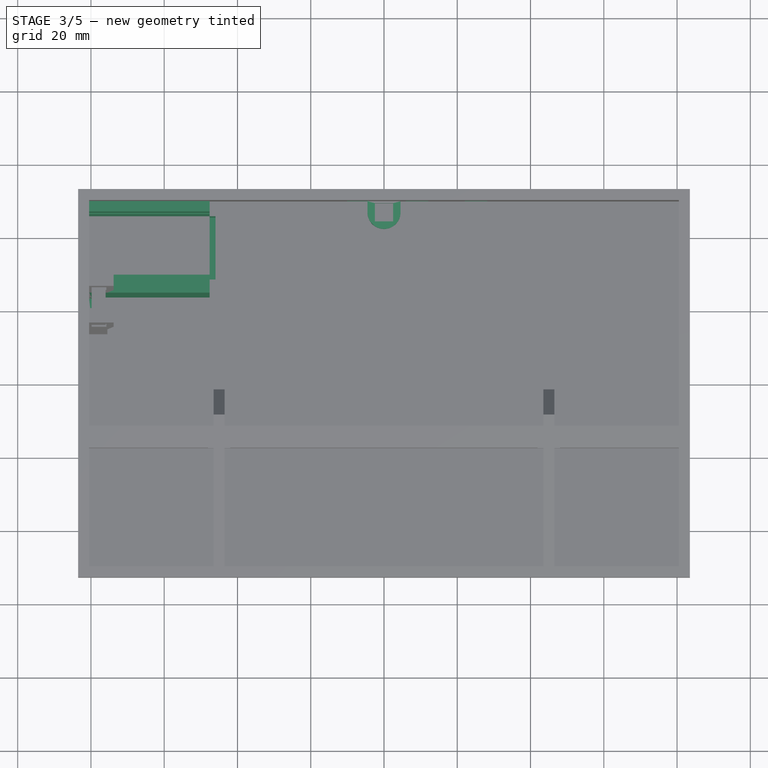
[diagram: stage 3 of 5 — top view after this stage's code; geometry added in this stage tinted green]
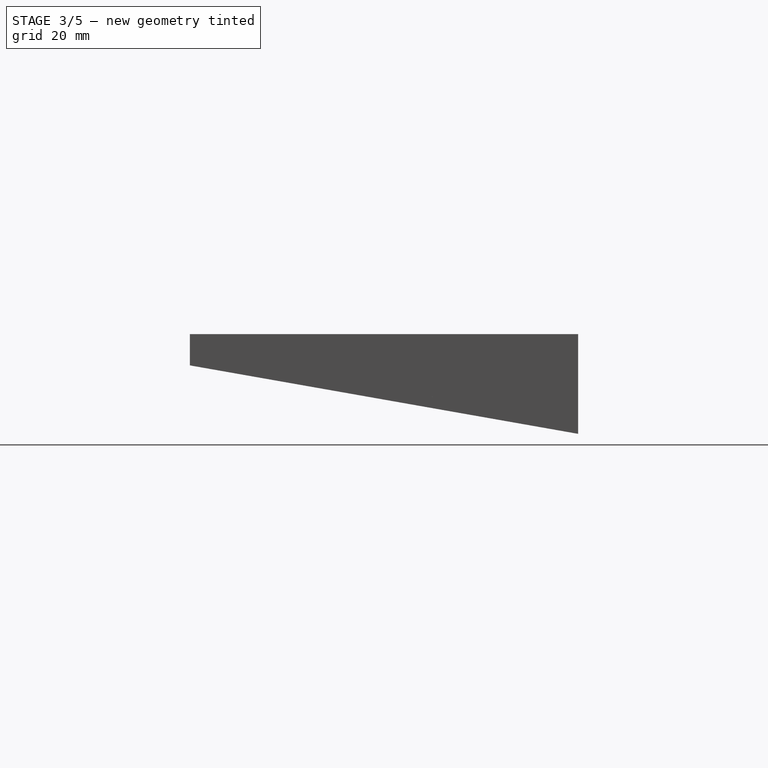
[diagram: stage 3 of 5 — right view after this stage's code; geometry added in this stage tinted green]
FEATURE [Part::FeaturePython] Slice  # WARN: FeaturePython — macro-defined, semantics opaque (R4)
  Base = -> Fusion002
  Mode = 1
  Tolerance = 0
  Tools = -> [Extrude004]
FEATURE [Part::FeaturePython] Slice_child0  label="Slice.0"  # WARN: FeaturePython — macro-defined, semantics opaque (R4)
  Base = -> Slice
  FilterType = 1
  Invert = false
  OverrideMaxVal = 0
  WindowFrom = 80
  WindowTo = 100
  items = 0
FEATURE [Part::MultiFuse] Fusion003  label="PedalBox"
  Refine = true
  Shapes = -> [Extrude004,Slice_child0]
FEATURE [Sketcher::SketchObject] Sketch015
  ArcFitTolerance = 1e-06
  AttachmentOffset = pos=(0,0,0) rot=(0,0,1;2.96706rad)
  AttachmentSupport = -> [Fusion003]
  ExternalGeometry = -> [Fusion003]
  FullyConstrained = true
  MakeInternals = false
  MapMode = 6
  Placement = pos=(-80.5,50,-23.6327) rot=(-0.540716,-0.6444,-0.540716;4.28645rad)
  expr: Constraints[10] = <<dim>>.board_elevation
  expr: Constraints[11] = <<dim>>.board_thickness
  expr: Constraints[13] = <<dim>>.micro_width - <<dim>>.micro_headersep
  expr: Constraints[33] = <<dim>>.micro_width - <<dim>>.micro_headersep
  expr: Constraints[34] = <<dim>>.micro_headersep
  expr: Constraints[35] = <<dim>>.board_to_header
  expr: Constraints[40] = <<dim>>.micro_wallthickness
  sketch-geometry (14):
    g0: LineSegment StartX=-21.7038 StartY=0 StartZ=0 EndX=-26.7038 EndY=0 EndZ=0
    g1: LineSegment StartX=-26.7038 StartY=0 StartZ=0 EndX=-26.7038 EndY=7 EndZ=0
    g2: LineSegment StartX=-26.7038 StartY=7 StartZ=0 EndX=-21.7038 EndY=7 EndZ=0
    g3: LineSegment StartX=-21.7038 StartY=7 StartZ=0 EndX=-21.7038 EndY=4.6 EndZ=0
    g4: LineSegment StartX=-22.1038 StartY=3.8 StartZ=0 EndX=-21.7038 EndY=3 EndZ=0
    g5: LineSegment StartX=-21.7038 StartY=3 StartZ=0 EndX=-21.7038 EndY=0 EndZ=0
    g6: LineSegment StartX=-22.1038 StartY=3.8 StartZ=0 EndX=-21.7038 EndY=4.6 EndZ=0
    g7: LineSegment StartX=-4.10377 StartY=0 StartZ=0 EndX=0.896225 EndY=0 EndZ=0
    g8: LineSegment StartX=0.896225 StartY=0 StartZ=0 EndX=0.896225 EndY=7 EndZ=0
    g9: LineSegment StartX=0.896225 StartY=7 StartZ=0 EndX=-4.10377 EndY=7 EndZ=0
    g10: LineSegment StartX=-4.10377 StartY=7 StartZ=0 EndX=-4.10377 EndY=4.6 EndZ=0
    g11: LineSegment StartX=-3.70377 StartY=3.8 StartZ=0 EndX=-4.10377 EndY=3 EndZ=0
    g12: LineSegment StartX=-4.10377 StartY=3 StartZ=0 EndX=-4.10377 EndY=0 EndZ=0
    g13: LineSegment StartX=-3.70377 StartY=3.8 StartZ=0 EndX=-4.10377 EndY=4.6 EndZ=0
  constraints (42):
    c: Coincident(g0,g1)
    c: Vertical(g1)
    c: Coincident(g1,g2)
    c: Horizontal(g2)
    c: Coincident(g2,g3)
    c: Vertical(g3)
    c: Coincident(g4,g5)
    c: Vertical(g5)
    c: Coincident(g6,g4)
    c: Coincident(g6,g3)
    c: DistanceY(g5,g5) = 3
    c: DistanceY(g4,g3) = 1.6
    c: Equal(g6,g4)
    c: DistanceX(g4,g3) = 0.4
    c: Coincident(g7,g8)
    c: Vertical(g8)
    c: Coincident(g8,g9)
    c: Horizontal(g9)
    c: Coincident(g9,g10)
    c: Vertical(g10)
    c: Coincident(g11,g12)
    c: Coincident(g12,g7)
    c: Vertical(g12)
    c: Coincident(g13,g11)
    c: Coincident(g13,g10)
    c: Equal(g13,g11)
    c: Horizontal(g7)
    c: PointOnObject(g7,g-1)
    c: Equal(g7,g0)
    c: Equal(g9,g2)
    c: Equal(g12,g5)
    c: Equal(g8,g1)
    c: Horizontal(g10,g3)
    c: DistanceX(g10,g11) = 0.4
    c: DistanceX(g0,g7) = 17.6
    c: DistanceY(g4,g1) = 4
    c: PointOnObject(g0,g-1)
    c: Vertical(g3,g4)
    c: Coincident(g5,g0)
    c: Horizontal(g0)
    c: DistanceX(g2,g2) = 5
    c: Vertical(g-3,g9)
FEATURE [Part::Extrusion] Extrude010  label="Rail"
  Base = -> Sketch015
  Dir = (1,-1e-16,-1e-16)
  DirMode = 2
  FaceMakerClass = Part::FaceMakerBullseye
  FaceMakerMode = 3
  LengthFwd = 32.9
  LengthRev = 0
  Solid = true
  Symmetric = false
  expr: LengthFwd = <<dim>>.micro_length
FEATURE [Part::MultiFuse] Fusion006  label="Structure"
  Refine = true
  Shapes = -> [Fusion003,Extrude010]
FEATURE [Sketcher::SketchObject] Sketch012
  ArcFitTolerance = 1e-06
  AttachmentOffset = pos=(0,0,0) rot=(0,0,-1;1.39626rad)
  AttachmentSupport = -> [Fusion006]
  ExternalGeometry = -> [Fusion006]
  FullyConstrained = true
  MakeInternals = false
  MapMode = 6
  Placement = pos=(-83.5,53,-27.208) rot=(0.540716,-0.6444,-0.540716;1.99673rad)
  expr: Constraints[18] = <<dim>>.switch_width
  expr: Constraints[19] = <<dim>>.switch_length
  expr: Constraints[37] = <<dim>>.board_elevation + <<dim>>.board_to_header
  expr: Constraints[38] = <<dim>>.plate_thickness
  expr: Constraints[43] = <<dim>>.plate_thickness
  expr: Constraints[44] = <<dim>>.micro_wallthickness
  sketch-geometry (19):
    g0: LineSegment [constr] StartX=10.979 StartY=9 StartZ=0 EndX=10.979 EndY=4 EndZ=0
    g1: LineSegment [constr] StartX=10.979 StartY=4 StartZ=0 EndX=21.979 EndY=4 EndZ=0
    g2: LineSegment [constr] StartX=21.979 StartY=4 StartZ=0 EndX=21.979 EndY=9 EndZ=0
    g3: LineSegment [constr] StartX=21.979 StartY=9 StartZ=0 EndX=10.979 EndY=9 EndZ=0
    g4: GeomPoint [constr] X=16.479 Y=10 Z=0
    g5: GeomPoint [constr] X=16.479 Y=3 Z=0
    g6: LineSegment [constr] StartX=16.479 StartY=10 StartZ=0 EndX=16.479 EndY=3 EndZ=0
    g7: LineSegment StartX=30.279 StartY=13.7 StartZ=0 EndX=30.279 EndY=3 EndZ=0
    g8: LineSegment StartX=30.279 StartY=3 StartZ=0 EndX=36.379 EndY=3 EndZ=0
    g9: LineSegment StartX=36.379 StartY=3 StartZ=0 EndX=36.379 EndY=13.7 EndZ=0
    g10: LineSegment StartX=36.379 StartY=13.7 StartZ=0 EndX=30.279 EndY=13.7 EndZ=0
    g11: LineSegment StartX=21.979 StartY=10 StartZ=0 EndX=10.979 EndY=10 EndZ=0
    g12: ArcOfCircle CenterX=10.979 CenterY=9 CenterZ=0 NormalX=0 NormalY=0 NormalZ=-1 AngleXU=-1.5708 Radius=1 StartAngle=1.5708 EndAngle=3.14159
    g13: LineSegment StartX=9.97904 StartY=9 StartZ=0 EndX=9.97904 EndY=4 EndZ=0
    g14: ArcOfCircle CenterX=10.979 CenterY=4 CenterZ=0 NormalX=0 NormalY=0 NormalZ=-1 AngleXU=-3.14159 Radius=1 StartAngle=1.5708 EndAngle=3.14159
    g15: LineSegment StartX=10.979 StartY=3 StartZ=0 EndX=21.979 EndY=3 EndZ=0
    g16: ArcOfCircle CenterX=21.979 CenterY=4 CenterZ=0 NormalX=0 NormalY=0 NormalZ=-1 AngleXU=1.5708 Radius=1 StartAngle=1.5708 EndAngle=3.14159
    g17: LineSegment StartX=22.979 StartY=4 StartZ=0 EndX=22.979 EndY=9 EndZ=0
    g18: ArcOfCircle CenterX=21.979 CenterY=9 CenterZ=0 NormalX=0 NormalY=0 NormalZ=-1 AngleXU=0 Radius=1 StartAngle=1.5708 EndAngle=3.14159
  constraints (45):
    c: Coincident(g0,g1)
    c: Coincident(g1,g2)
    c: Coincident(g2,g3)
    c: Coincident(g3,g0)
    c: Vertical(g0)
    c: Vertical(g2)
    c: Horizontal(g1)
    c: DistanceX(g3,g3) = 11
    c: Coincident(g6,g4)
    c: Coincident(g6,g5)
    c: Symmetric(g2,g0,g6)
    c: Coincident(g7,g8)
    c: Coincident(g8,g9)
    c: Coincident(g9,g10)
    c: Coincident(g10,g7)
    c: Vertical(g7)
    c: Vertical(g9)
    c: Horizontal(g10)
    c: DistanceX(g10,g10) = 6.1
    c: DistanceY(g9,g9) = 10.7
    c: Tangent(g11,g12) = -1.5708
    c: Tangent(g11,g18) = -1.5708
    c: Tangent(g12,g13) = -1.5708
    c: Tangent(g13,g14) = -1.5708
    c: Tangent(g14,g15) = -1.5708
    c: Tangent(g15,g16) = -1.5708
    c: Tangent(g16,g17) = -1.5708
    c: Tangent(g17,g18) = -1.5708
    c: Vertical(g13)
    c: Vertical(g17)
    c: Horizontal(g11)
    c: Horizontal(g15)
    c: Equal(g11,g15)
    c: Coincident(g12,g0)
    c: Coincident(g0,g14)
    c: Coincident(g18,g2)
    c: DistanceY(g0,g11) = 1
    c: DistanceY(g15,g11) = 7
    c: Distance(g15,g-1) = 3
    c: PointOnObject(g4,g11)
    c: PointOnObject(g5,g15)
    c: Symmetric(g-4,g-3,g6)
    c: Horizontal(g8)
    c: Distance(g7,g-1) = 3
    c: DistanceX(g-4,g7) = 5
FEATURE [Sketcher::SketchObject] Sketch013
  ArcFitTolerance = 1e-06
  AttachmentSupport = -> [Fusion006]
  FullyConstrained = true
  MakeInternals = false
  MapMode = 5
  Placement = pos=(0,53,1.22e-14) rot=(0,0.707107,0.707107;3.14159rad)
  expr: Constraints[14] = <<dim>>.total_width
  expr: Constraints[33] = <<dim>>.button_width
  expr: Constraints[34] = <<dim>>.button_length
  expr: Constraints[35] = <<dim>>.button_width
  expr: Constraints[36] = <<dim>>.button_length
  expr: Constraints[38] = <<dim>>.button_sep
  expr: Constraints[39] = <<dim>>.button_sep
  expr: Constraints[43] = <<dim>>.button_xshift
  expr: Constraints[6] = <<dim>>.button_width
  expr: Constraints[7] = <<dim>>.button_length
  expr: Constraints[8] = <<dim>>.rim
  sketch-geometry (17):
    g0: LineSegment StartX=-12.05 StartY=-13.554 StartZ=0 EndX=-12.05 EndY=-19.654 EndZ=0
    g1: LineSegment StartX=-12.05 StartY=-19.654 StartZ=0 EndX=-5.95 EndY=-19.654 EndZ=0
    g2: LineSegment StartX=-5.95 StartY=-19.654 StartZ=0 EndX=-5.95 EndY=-13.554 EndZ=0
    g3: LineSegment StartX=-5.95 StartY=-13.554 StartZ=0 EndX=-12.05 EndY=-13.554 EndZ=0
    g4: GeomPoint [constr] X=0 Y=-6 Z=0
    g5: GeomPoint [constr] X=0 Y=-16.604 Z=0
    g6: GeomPoint [constr] X=0 Y=-27.208 Z=0
    g7: LineSegment [constr] StartX=-83.5 StartY=-16.604 StartZ=0 EndX=83.5 EndY=-16.604 EndZ=0
    g8: LineSegment StartX=-28.15 StartY=-13.554 StartZ=0 EndX=-28.15 EndY=-19.654 EndZ=0
    g9: LineSegment StartX=-28.15 StartY=-19.654 StartZ=0 EndX=-22.05 EndY=-19.654 EndZ=0
    g10: LineSegment StartX=-22.05 StartY=-19.654 StartZ=0 EndX=-22.05 EndY=-13.554 EndZ=0
    g11: LineSegment StartX=-22.05 StartY=-13.554 StartZ=0 EndX=-28.15 EndY=-13.554 EndZ=0
    g12: LineSegment StartX=4.05 StartY=-13.554 StartZ=0 EndX=4.05 EndY=-19.654 EndZ=0
    g13: LineSegment StartX=4.05 StartY=-19.654 StartZ=0 EndX=10.15 EndY=-19.654 EndZ=0
    g14: LineSegment StartX=10.15 StartY=-19.654 StartZ=0 EndX=10.15 EndY=-13.554 EndZ=0
    g15: LineSegment StartX=10.15 StartY=-13.554 StartZ=0 EndX=4.05 EndY=-13.554 EndZ=0
    g16: GeomPoint [constr] X=-9 Y=-13.554 Z=0
  constraints (44):
    c: Coincident(g0,g1)
    c: Coincident(g1,g2)
    c: Coincident(g2,g3)
    c: Coincident(g3,g0)
    c: Vertical(g0)
    c: Horizontal(g1)
    c: DistanceX(g3,g3) = 6.1
    c: DistanceY(g2,g2) = 6.1
    c: DistanceY(g4,g-1) = 6
    c: PointOnObject(g5,g-2)
    c: PointOnObject(g5,g7)
    c: Symmetric(g7,g7,g-2)
    c: Symmetric(g4,g6,g7)
    c: Symmetric(g2,g1,g7)
    c: DistanceX(g7,g7) = 167
    c: PointOnObject(g6,g-2)
    c: PointOnObject(g6,g-3)
    c: Coincident(g8,g9)
    c: Coincident(g9,g10)
    c: Coincident(g10,g11)
    c: Coincident(g11,g8)
    c: Vertical(g8)
    c: Vertical(g10)
    c: Horizontal(g9)
    c: Horizontal(g11)
    c: Coincident(g12,g13)
    c: Coincident(g13,g14)
    c: Coincident(g14,g15)
    c: Coincident(g15,g12)
    c: Vertical(g12)
    c: Vertical(g14)
    c: Horizontal(g13)
    c: Horizontal(g15)
    c: DistanceX(g11,g11) = 6.1
    c: DistanceY(g8,g8) = 6.1
    c: DistanceX(g15,g15) = 6.1
    c: DistanceY(g12,g12) = 6.1
    c: Horizontal(g9,g0)
    c: DistanceX(g10,g0) = 10
    c: DistanceX(g2,g12) = 10
    c: Horizontal(g3)
    c: Horizontal(g12,g2)
    c: Symmetric(g3,g3,g16)
    c: Distance(g16,g-2) = 9
FEATURE [PartDesign::FeatureBase] BaseFeature
  BaseFeature = -> Fusion006
  Suppressed = false
FEATURE [PartDesign::Pocket] Pocket
  BaseFeature = -> BaseFeature
  Direction = (1,0,-2e-16)
  Length = 5
  Length2 = 5
  Profile = -> Sketch012
  ReferenceAxis = -> Sketch012 [N_Axis]
  Refine = true
  Suppressed = false
  Type = 2
FEATURE [PartDesign::Pocket] Pocket001
  BaseFeature = -> Pocket
  Direction = (0,-1,2e-16)
  Length = 5
  Length2 = 5
  Profile = -> Sketch013
  ReferenceAxis = -> Sketch013 [N_Axis]
  Refine = true
  Suppressed = false
  Type = 2
FEATURE [PartDesign::Body] Body002  label="StabiliserHoled"
  AllowCompound = false
  BaseFeature = -> Extrude011
  Group = -> [BaseFeature001,Sketch017,Hole]
  Origin = -> Origin002
  Placement = pos=(-80.5,32,-21) rot=(1,0,0;-0.174533rad)
  Tip = -> Hole
  expr: .Placement.Base.x = -<<dim>>.total_width / 2 + <<dim>>.wall_thickness
FEATURE [Sketcher::SketchObject] Sketch018
  ArcFitTolerance = 1e-06
  AttachmentSupport = -> [XY_Plane001]
  FullyConstrained = true
  MakeInternals = false
  MapMode = 5
  sketch-geometry (8):
    g0: LineSegment StartX=-4.5 StartY=0 StartZ=0 EndX=4.5 EndY=0 EndZ=0
    g1: LineSegment StartX=4.5 StartY=0 StartZ=0 EndX=4.5 EndY=-3.05051 EndZ=0
    g2: LineSegment StartX=-4.5 StartY=0 StartZ=0 EndX=-4.5 EndY=-3.05051 EndZ=0
    g3: ArcOfCircle CenterX=0 CenterY=-3.05051 CenterZ=0 NormalX=0 NormalY=0 NormalZ=1 AngleXU=0 Radius=4.5 StartAngle=3.14159 EndAngle=6.28319
    g4: LineSegment StartX=-2.5 StartY=-0.5 StartZ=0 EndX=-2.5 EndY=-5.5 EndZ=0
    g5: LineSegment StartX=-2.5 StartY=-5.5 StartZ=0 EndX=2.5 EndY=-5.5 EndZ=0
    g6: LineSegment StartX=2.5 StartY=-5.5 StartZ=0 EndX=2.5 EndY=-0.5 EndZ=0
    g7: LineSegment StartX=2.5 StartY=-0.5 StartZ=0 EndX=-2.5 EndY=-0.5 EndZ=0
  constraints (23):
    c: PointOnObject(g0,g-1)
    c: Coincident(g0,g1)
    c: Coincident(g0,g2)
    c: PointOnObject(g3,g-2)
    c: Coincident(g3,g1)
    c: Coincident(g3,g2)
    c: Horizontal(g2,g1)
    c: Symmetric(g0,g0,g-2)
    c: Horizontal(g3,g1)
    c: Coincident(g4,g5)
    c: Coincident(g5,g6)
    c: Coincident(g6,g7)
    c: Coincident(g7,g4)
    c: Vertical(g4)
    c: Vertical(g6)
    c: Horizontal(g5)
    c: Symmetric(g6,g4,g-2)
    c: Equal(g7,g6)
    c: Distance(g6,g0) = 0.5
    c: DistanceX(g7,g7) = 5
    c: DistanceX(g6,g0) = 2
    c: Distance(g5,g3) = 1
    c: Vertical(g1)
FEATURE [Part::Extrusion] Extrude012  label="BlockBot1"
  Base = -> Sketch018
  Dir = (0,0,1)
  DirMode = 2
  FaceMakerClass = Part::FaceMakerBullseye
  FaceMakerMode = 3
  LengthFwd = 4
  LengthRev = 0
  Placement = pos=(0,50,-24) rot=(0,0,1;0rad)
  Solid = true
  Symmetric = false
  expr: .Placement.Base.y = <<dim>>.half_length - <<dim>>.wall_thickness
FEATURE [Sketcher::SketchObject] Sketch019
  ArcFitTolerance = 1e-06
  AttachmentOffset = pos=(0,0,0) rot=(0,0,-1;1.39626rad)
  AttachmentSupport = -> [BaseFeature]
  ExternalGeometry = -> [BaseFeature]
  FullyConstrained = false
  MakeInternals = false
  MapMode = 6
  Placement = pos=(-83.5,53,-27.208) rot=(0.540716,-0.6444,-0.540716;1.99673rad)
  expr: Constraints[0] = <<dim>>.stabiliser_reach / 2 + <<dim>>.stabiliser_thickness + <<dim>>.board_elevation + <<dim>>.board_thickness + <<dim>>.plate_thickness
  sketch-geometry (2):
    g0: Circle CenterX=16.479 CenterY=15.6 CenterZ=0 NormalX=0 NormalY=0 NormalZ=1 AngleXU=0 Radius=1.7
    g1: LineSegment [constr] StartX=16.479 StartY=27.4457 StartZ=0 EndX=16.479 EndY=0 EndZ=0
  constraints (5):
    c: Distance(g0,g-1) = 15.6
    c: Diameter(g0) = 3.4
    c: PointOnObject(g1,g-1)
    c: Symmetric(g-4,g-3,g1)
    c: PointOnObject(g0,g1)
FEATURE [PartDesign::Hole] Hole001
  BaseFeature = -> Pocket001
  CustomThreadClearance = 0
  Depth = 5
  DepthType = 0
  Diameter = 3.2
  DrillForDepth = false
  DrillPoint = 1
  DrillPointAngle = 118
  HoleCutCountersinkAngle = 90
  HoleCutCustomValues = false
  HoleCutDepth = 1.7
  HoleCutDiameter = 6
  HoleCutType = 4
  ModelThread = false
  Profile = -> Sketch019
  Refine = true
  Suppressed = false
  Tapered = false
  TaperedAngle = 90
  ThreadClass = 0
  ThreadDepth = 5
  ThreadDepthType = 0
  ThreadDirection = 0
  ThreadFit = 1
  ThreadSize = 9
  ThreadType = 1
  Threaded = false
  UseCustomThreadClearance = false
FEATURE [Sketcher::SketchObject] Sketch020
  ArcFitTolerance = 1e-06
  AttachmentSupport = -> [Hole001]
  ExternalGeometry = -> [Hole001]
  FullyConstrained = true
  MakeInternals = false
  MapMode = 5
  Placement = pos=(-2.7e-15,-2.53374,-14.3696) rot=(-1,0,0;0.174533rad)
  expr: Constraints[19] = <<dim>>.switch_width
  expr: Constraints[20] = <<dim>>.switch_tab
  expr: Constraints[9] = <<dim>>.stabiliser_thickness / 2 + 0.1 mm
  sketch-geometry (8):
    g0: LineSegment StartX=-47.6 StartY=49.2404 StartZ=0 EndX=-47.6 EndY=31.6404 EndZ=0
    g1: LineSegment StartX=-47.6 StartY=31.6404 StartZ=0 EndX=-46 EndY=31.6404 EndZ=0
    g2: LineSegment StartX=-46 StartY=31.6404 StartZ=0 EndX=-46 EndY=49.2404 EndZ=0
    g3: LineSegment StartX=-46 StartY=49.2404 StartZ=0 EndX=-47.6 EndY=49.2404 EndZ=0
    g4: LineSegment StartX=-80.5 StartY=26.6404 StartZ=0 EndX=-80.5 EndY=20.5404 EndZ=0
    g5: LineSegment StartX=-80.5 StartY=20.5404 StartZ=0 EndX=-79.8 EndY=20.5404 EndZ=0
    g6: LineSegment StartX=-79.8 StartY=20.5404 StartZ=0 EndX=-79.8 EndY=26.6404 EndZ=0
    g7: LineSegment StartX=-79.8 StartY=26.6404 StartZ=0 EndX=-80.5 EndY=26.6404 EndZ=0
  constraints (21):
    c: Coincident(g0,g1)
    c: Coincident(g1,g2)
    c: Coincident(g2,g3)
    c: Coincident(g3,g0)
    c: Vertical(g2)
    c: Horizontal(g1)
    c: Horizontal(g3)
    c: Coincident(g0,g-4)
    c: Coincident(g0,g-3)
    c: DistanceX(g1,g1) = 1.6
    c: Coincident(g4,g5)
    c: Coincident(g5,g6)
    c: Coincident(g6,g7)
    c: Coincident(g7,g4)
    c: Vertical(g4)
    c: Vertical(g6)
    c: Horizontal(g5)
    c: Horizontal(g7)
    c: Coincident(g4,g-6)
    c: DistanceY(g6,g6) = 6.1
    c: DistanceX(g5,g5) = 0.7
FEATURE [PartDesign::Pocket] Pocket002
  BaseFeature = -> Hole001
  Direction = (0,-0.173648,-0.984808)
  Length = 2
  Length2 = 5
  Profile = -> Sketch020
  ReferenceAxis = -> Sketch020 [N_Axis]
  Refine = true
  Suppressed = false
  Type = 0
  expr: Length = <<dim>>.stabiliser_pocket
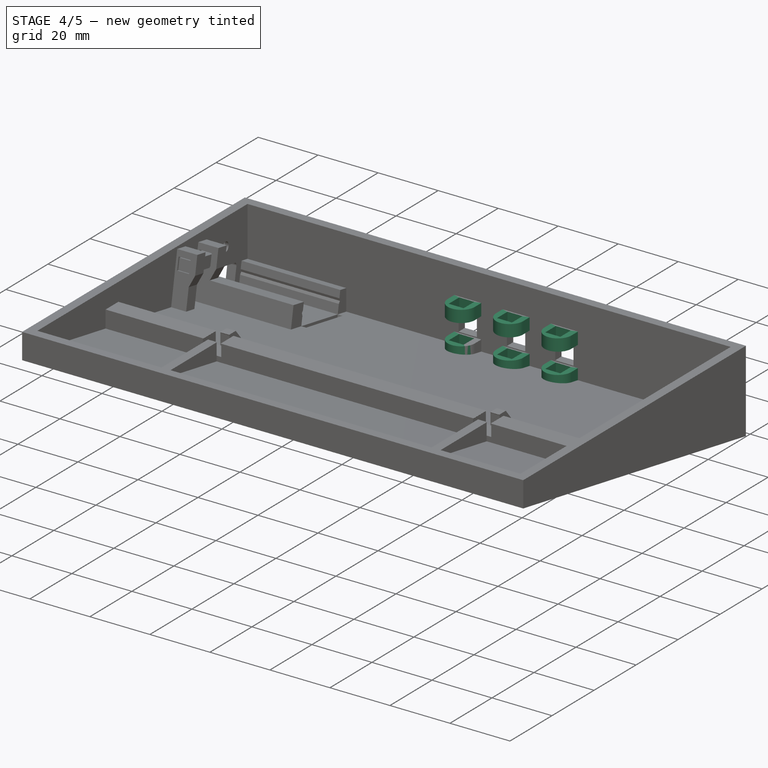
[diagram: stage 4 of 5 — iso view after this stage's code; geometry added in this stage tinted green]
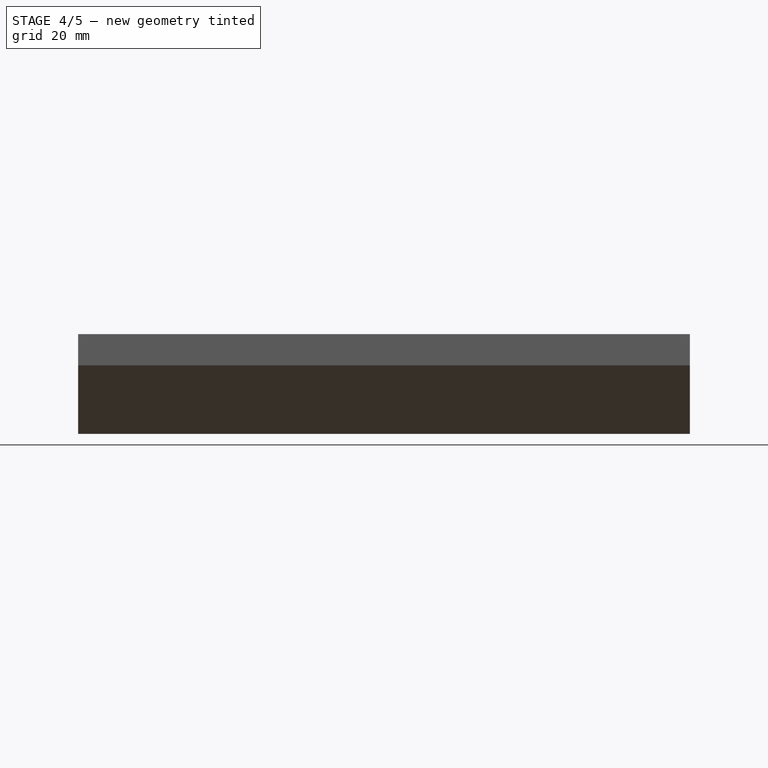
[diagram: stage 4 of 5 — front view after this stage's code; geometry added in this stage tinted green]
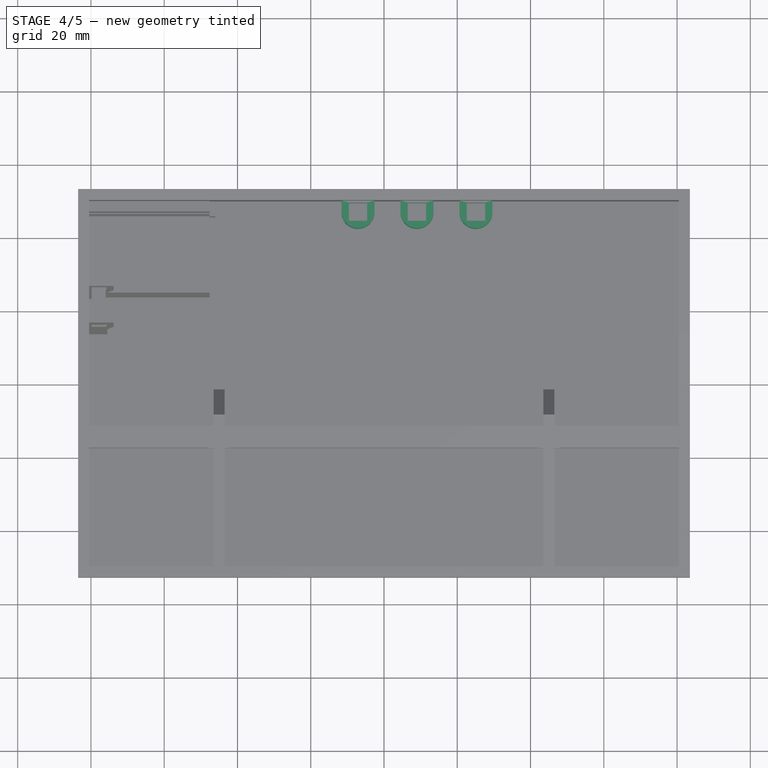
[diagram: stage 4 of 5 — top view after this stage's code; geometry added in this stage tinted green]
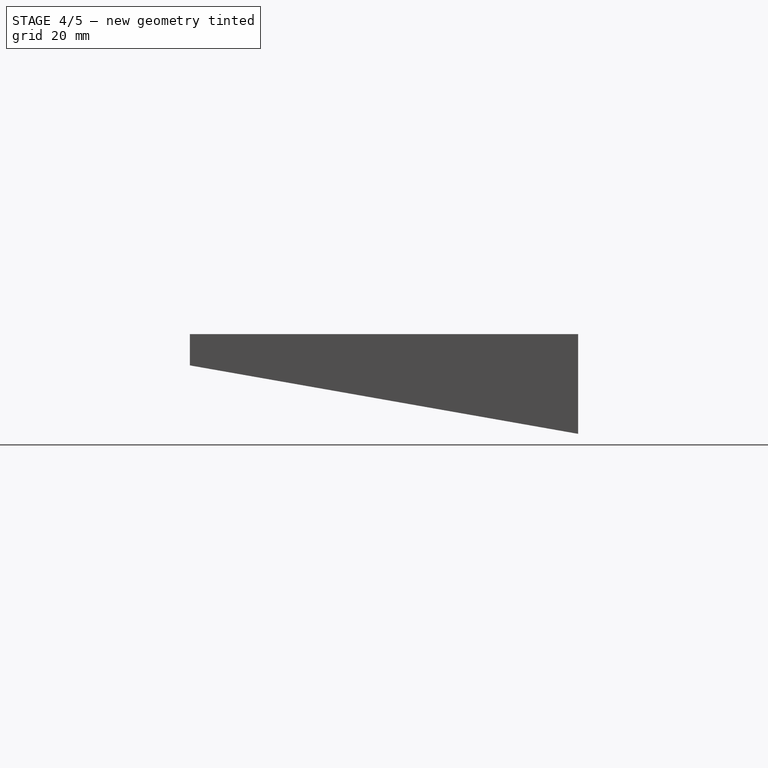
[diagram: stage 4 of 5 — right view after this stage's code; geometry added in this stage tinted green]
FEATURE [Part::Extrusion] Extrude008  label="L"
  Base = -> ShapeString002
  Dir = (0,1,-2e-16)
  DirMode = 2
  FaceMakerClass = Part::FaceMakerBullseye
  FaceMakerMode = 3
  LengthFwd = 0
  LengthRev = 1
  Solid = false
  Symmetric = false
FEATURE [PartDesign::FeatureBase] Clone
  BaseFeature = -> Extrude012
  Placement = pos=(0,50,-24) rot=(0,0,1;0rad)
  Suppressed = false
FEATURE [PartDesign::Body] Body003  label="BlockBot2"
  AllowCompound = false
  Group = -> [Clone]
  Origin = -> Origin003
  Placement = pos=(16.1,0,0) rot=(0,0,1;0rad)
  Tip = -> Clone
  expr: .Placement.Base.x = <<dim>>.button_sep + <<dim>>.button_width
FEATURE [PartDesign::FeatureBase] Clone001
  BaseFeature = -> Extrude012
  Placement = pos=(0,50,-24) rot=(0,0,1;0rad)
  Suppressed = false
FEATURE [PartDesign::Body] Body004  label="BlockBot3"
  AllowCompound = false
  Group = -> [Clone001]
  Origin = -> Origin004
  Placement = pos=(-16.1,0,0) rot=(0,0,1;0rad)
  Tip = -> Clone001
  expr: .Placement.Base.x = -<<dim>>.button_sep - <<dim>>.button_width
FEATURE [PartDesign::FeatureBase] Clone002
  BaseFeature = -> Extrude012
  Placement = pos=(0,50,-24) rot=(0,0,1;0rad)
  Suppressed = false
FEATURE [PartDesign::Body] Body005  label="BlockBot4"
  AllowCompound = false
  Group = -> [Clone002]
  Origin = -> Origin005
  Placement = pos=(0,0,11) rot=(0,0,1;0rad)
  Tip = -> Clone002
FEATURE [PartDesign::FeatureBase] Clone003
  BaseFeature = -> Body003
  Placement = pos=(16.1,0,0) rot=(0,0,1;0rad)
  Suppressed = false
FEATURE [PartDesign::Body] Body006  label="BlockBot5"
  AllowCompound = false
  Group = -> [Clone003]
  Origin = -> Origin006
  Placement = pos=(0,0,11) rot=(0,0,1;0rad)
  Tip = -> Clone003
FEATURE [PartDesign::FeatureBase] Clone004
  BaseFeature = -> Body004
  Placement = pos=(-16.1,0,0) rot=(0,0,1;0rad)
  Suppressed = false
FEATURE [PartDesign::Body] Body007  label="BlockBot6"
  AllowCompound = false
  Group = -> [Clone004]
  Origin = -> Origin007
  Placement = pos=(0,0,11) rot=(0,0,1;0rad)
  Tip = -> Clone004
FEATURE [Part::MultiFuse] Fusion007  label="Blocks"
  Placement = pos=(9,0,0) rot=(0,0,1;0rad)
  Refine = true
  Shapes = -> [Extrude012,Body003,Body004,Body005,Body006,Body007]
  expr: .Placement.Base.x = <<dim>>.button_xshift
FEATURE [PartDesign::Body] Body001  label="Body"
  AllowCompound = false
  BaseFeature = -> Fusion006
  Group = -> [BaseFeature,Sketch012,Sketch013,Pocket,Pocket001,Sketch019,Hole001,Sketch020,Pocket002]
  Origin = -> Origin001
  Tip = -> Pocket002
FEATURE [Part::MultiFuse] Fusion008
  Refine = true
  Shapes = -> [Body001,Fusion007]
FEATURE [Sketcher::SketchObject] Sketch014
  ArcFitTolerance = 1e-06
  AttachmentOffset = pos=(0,0,0) rot=(0,0,1;0.174533rad)
  AttachmentSupport = -> [Fusion006]
  ExternalGeometry = -> [Fusion008]
  FullyConstrained = true
  MakeInternals = false
  MapMode = 5
  Placement = pos=(-83.5,0,0) rot=(0.540716,-0.6444,-0.540716;1.99673rad)
  expr: Constraints[22] = <<dim>>.switch_length
  sketch-geometry (10):
    g0: LineSegment StartX=-19.1904 StartY=-3.89126 StartZ=0 EndX=-19.1904 EndY=-4.89126 EndZ=0
    g1: LineSegment StartX=-19.1904 StartY=-4.89126 StartZ=0 EndX=-18.8904 EndY=-4.89126 EndZ=0
    g2: LineSegment StartX=-18.8904 StartY=-4.89126 StartZ=0 EndX=-18.8904 EndY=-3.89126 EndZ=0
    g3: LineSegment StartX=-18.8904 StartY=-3.89126 StartZ=0 EndX=-19.1904 EndY=-3.89126 EndZ=0
    g4: ArcOfCircle CenterX=-19.0404 CenterY=-13.8413 CenterZ=0 NormalX=0 NormalY=0 NormalZ=1 AngleXU=0 Radius=0.5 StartAngle=1.9e-15 EndAngle=3.14159
    g5: ArcOfCircle CenterX=-19.0404 CenterY=-14.0913 CenterZ=0 NormalX=0 NormalY=0 NormalZ=1 AngleXU=0 Radius=0.5 StartAngle=3.14159 EndAngle=6.28319
    g6: LineSegment StartX=-18.5404 StartY=-13.8413 StartZ=0 EndX=-18.5404 EndY=-14.0913 EndZ=0
    g7: LineSegment StartX=-19.5404 StartY=-13.8413 StartZ=0 EndX=-19.5404 EndY=-14.0913 EndZ=0
    g8: LineSegment [constr] StartX=-19.0404 StartY=-14.0913 StartZ=0 EndX=-19.0404 EndY=-13.8413 EndZ=0
    g9: GeomPoint [constr] X=-19.0404 Y=-14.5913 Z=0
  constraints (25):
    c: Coincident(g0,g1)
    c: Coincident(g1,g2)
    c: Coincident(g2,g3)
    c: Coincident(g3,g0)
    c: Vertical(g0)
    c: Vertical(g2)
    c: Horizontal(g1)
    c: Horizontal(g3)
    c: Tangent(g4,g6) = 1.5708
    c: Tangent(g4,g7) = -1.5708
    c: Tangent(g5,g6) = 1.5708
    c: Tangent(g5,g7) = -1.5708
    c: Equal(g4,g5)
    c: Distance(g6,g6) = 0.25
    c: DistanceX(g4,g4) = 1
    c: Distance(g3,g3) = 0.3
    c: DistanceY(g2,g2) = 1
    c: Coincident(g8,g5)
    c: Coincident(g8,g4)
    c: Symmetric(g0,g1,g8)
    c: PointOnObject(g9,g5)
    c: Vertical(g5,g9)
    c: DistanceY(g9,g2) = 10.7
    c: Horizontal(g-3,g0)
    c: Distance(g4,g-3) = 1
FEATURE [Part::Extrusion] Extrude009  label="onoff"
  Base = -> Sketch014
  Dir = (-1,-1e-16,-1e-16)
  DirMode = 2
  FaceMakerClass = Part::FaceMakerBullseye
  FaceMakerMode = 3
  LengthFwd = 0
  LengthRev = 1
  Solid = true
  Symmetric = false
FEATURE [Part::MultiFuse] Fusion010
  Refine = true
  Shapes = -> [Fusion008,Fusion009]
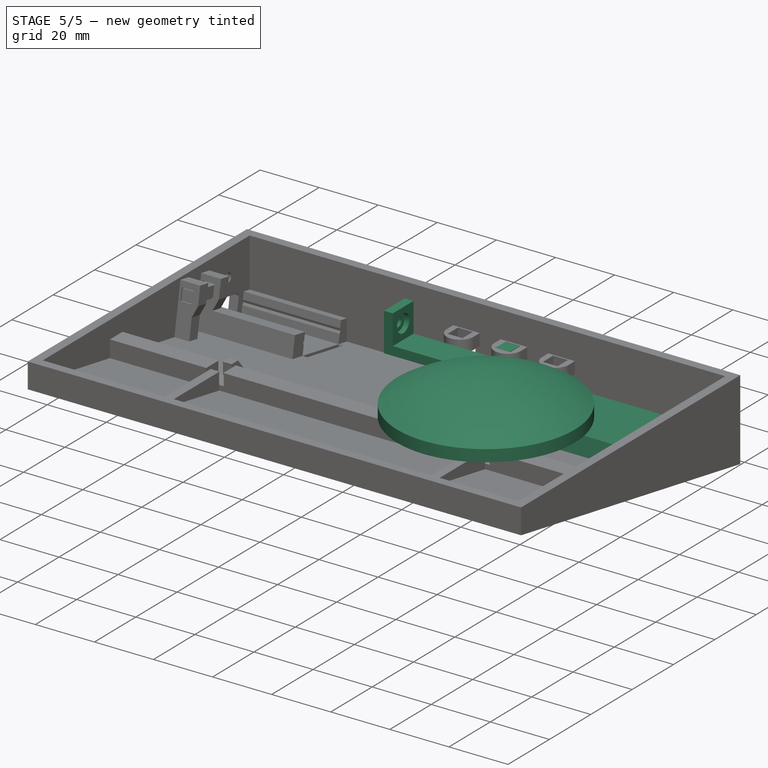
[diagram: stage 5 of 5 — iso view after this stage's code; geometry added in this stage tinted green]
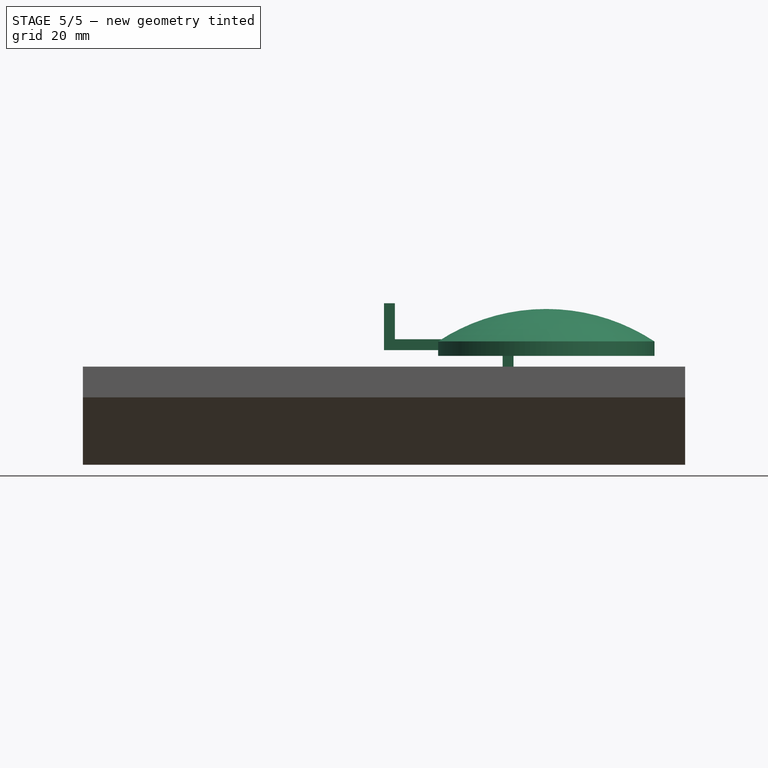
[diagram: stage 5 of 5 — front view after this stage's code; geometry added in this stage tinted green]
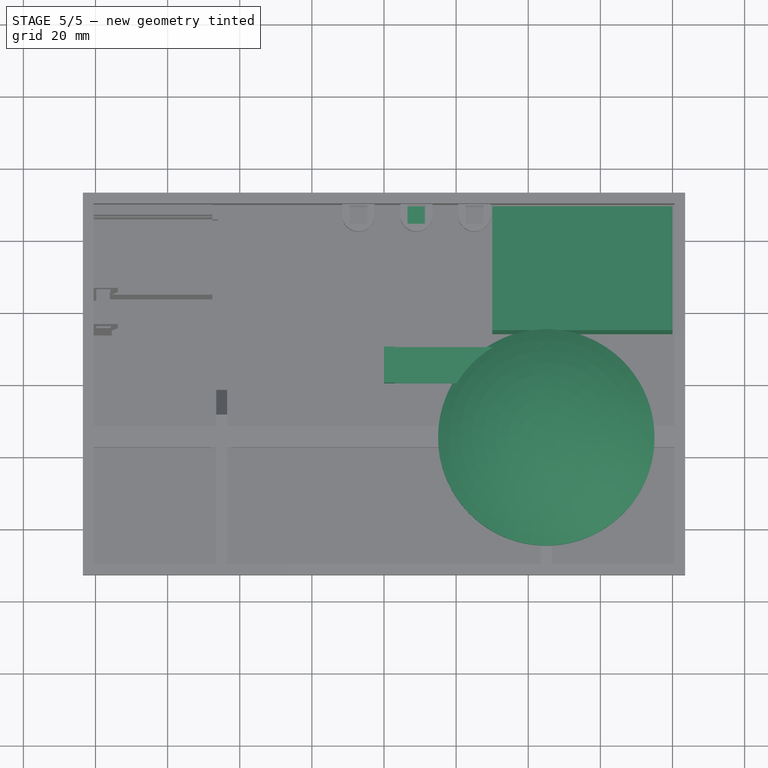
[diagram: stage 5 of 5 — top view after this stage's code; geometry added in this stage tinted green]
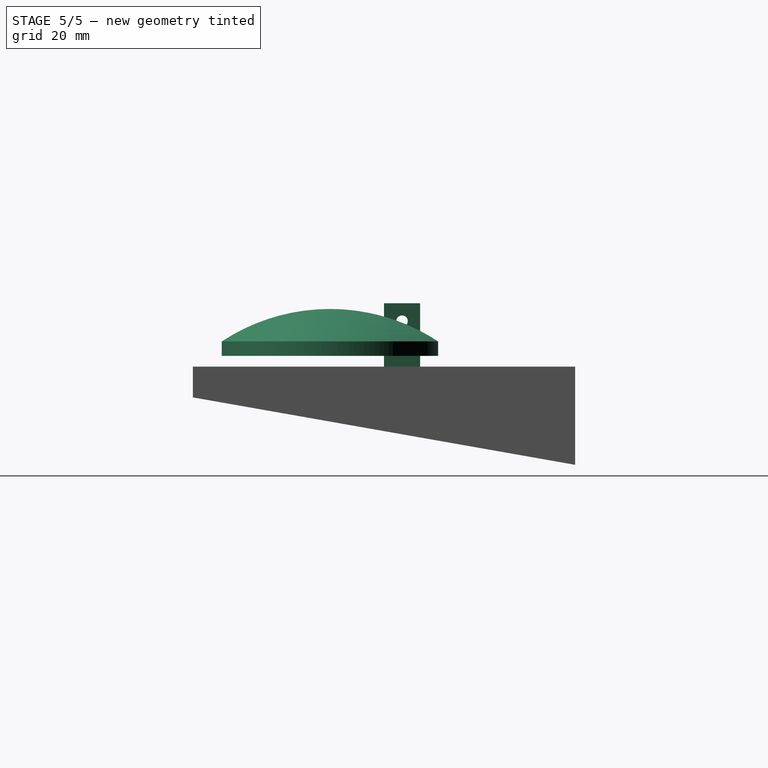
[diagram: stage 5 of 5 — right view after this stage's code; geometry added in this stage tinted green]
FEATURE [Part::Mirroring] Part__Mirroring001  label="Mushroom (Mirror #2)"
  Base = (9.53674e-07,-15,8.5)
  Normal = (1,0,-1.19209e-07)
  Source = -> Cut
FEATURE [Part::Part2DObjectPython] ShapeString  # Draft 2D object (typed FeaturePython)
  FontFile = <path>
  Fuse = false
  Justification = 6
  JustificationReference = 0
  KeepLeftMargin = false
  MakeFace = true
  ObliqueAngle = 0
  Placement = pos=(26.4,53,-13) rot=(0,0.707107,0.707107;3.14159rad)
  ScaleToSize = true
  Size = 3
  String = R
  Tracking = 0
FEATURE [Part::Extrusion] Extrude006  label="R"
  Base = -> ShapeString
  Dir = (0,1,-2e-16)
  DirMode = 2
  FaceMakerClass = Part::FaceMakerBullseye
  FaceMakerMode = 3
  LengthFwd = 0
  LengthRev = 1
  Solid = false
  Symmetric = false
FEATURE [Part::Part2DObjectPython] ShapeString001  # Draft 2D object (typed FeaturePython)
  FontFile = <path>
  Fuse = false
  Justification = 6
  JustificationReference = 0
  KeepLeftMargin = false
  MakeFace = true
  ObliqueAngle = 0
  Placement = pos=(10.2,53,-13) rot=(0,0.707107,0.707107;3.14159rad)
  ScaleToSize = true
  Size = 3
  String = B
  Tracking = 0
FEATURE [Part::Part2DObjectPython] ShapeString002  # Draft 2D object (typed FeaturePython)
  FontFile = <path>
  Fuse = false
  Justification = 6
  JustificationReference = 0
  KeepLeftMargin = false
  MakeFace = true
  ObliqueAngle = 0
  Placement = pos=(-6,53,-13) rot=(0,0.707107,0.707107;3.14159rad)
  ScaleToSize = true
  Size = 3
  String = L
  Tracking = 0
FEATURE [Part::Extrusion] Extrude007  label="B"
  Base = -> ShapeString001
  Dir = (0,1,-2e-16)
  DirMode = 2
  FaceMakerClass = Part::FaceMakerBullseye
  FaceMakerMode = 3
  LengthFwd = 0
  LengthRev = 1
  Solid = false
  Symmetric = false
FEATURE [Sketcher::SketchObject] Sketch016
  ArcFitTolerance = 1e-06
  FullyConstrained = true
  MakeInternals = false
  Placement = pos=(0,0,0) rot=(1,0,0;1.5708rad)
  expr: Constraints[14] = <<dim>>.board_elevation + <<dim>>.board_thickness
  expr: Constraints[17] = <<dim>>.stabiliser_thickness
  expr: Constraints[18] = <<dim>>.stabiliser_thickness
  expr: Constraints[19] = <<dim>>.stabiliser_thickness
  expr: Constraints[20] = <<dim>>.micro_length
  expr: Constraints[21] = <<dim>>.stabiliser_reach + <<dim>>.stabiliser_thickness
  expr: Constraints[31] = <<dim>>.stabiliser_pocket
  expr: Constraints[32] = <<dim>>.stabiliser_thickness / 2
  sketch-geometry (11):
    g0: LineSegment StartX=0 StartY=17.6 StartZ=0 EndX=3 EndY=17.6 EndZ=0
    g1: LineSegment StartX=3 StartY=17.6 StartZ=0 EndX=3 EndY=7.6 EndZ=0
    g2: LineSegment StartX=3 StartY=7.6 StartZ=0 EndX=35.9 EndY=7.6 EndZ=0
    g3: LineSegment StartX=35.9 StartY=7.6 StartZ=0 EndX=35.9 EndY=0 EndZ=0
    g4: LineSegment StartX=32.9 StartY=0 StartZ=0 EndX=32.9 EndY=4.6 EndZ=0
    g5: LineSegment StartX=32.9 StartY=4.6 StartZ=0 EndX=0 EndY=4.6 EndZ=0
    g6: LineSegment StartX=0 StartY=4.6 StartZ=0 EndX=0 EndY=17.6 EndZ=0
    g7: LineSegment StartX=32.9 StartY=0 StartZ=0 EndX=32.9 EndY=-2 EndZ=0
    g8: LineSegment StartX=32.9 StartY=-2 StartZ=0 EndX=34.4 EndY=-2 EndZ=0
    g9: LineSegment StartX=34.4 StartY=-2 StartZ=0 EndX=34.4 EndY=0 EndZ=0
    g10: LineSegment StartX=34.4 StartY=0 StartZ=0 EndX=35.9 EndY=0 EndZ=0
  constraints (33):
    c: PointOnObject(g0,g-2)
    c: Horizontal(g0)
    c: Coincident(g0,g1)
    c: Vertical(g1)
    c: Coincident(g1,g2)
    c: Horizontal(g2)
    c: Coincident(g2,g3)
    c: Vertical(g3)
    c: Vertical(g4)
    c: Coincident(g4,g5)
    c: PointOnObject(g5,g-2)
    c: Horizontal(g5)
    c: Coincident(g5,g6)
    c: Coincident(g0,g6)
    c: DistanceY(g-1,g5) = 4.6
    c: PointOnObject(g4,g-1)
    c: PointOnObject(g3,g-1)
    c: Distance(g1,g5) = 3
    c: DistanceX(g0,g0) = 3
    c: DistanceX(g4,g3) = 3
    c: DistanceX(g5,g5) = 32.9
    c: DistanceY(g6,g6) = 13
    c: Coincident(g4,g7)
    c: Vertical(g7)
    c: Coincident(g7,g8)
    c: Horizontal(g8)
    c: Coincident(g8,g9)
    c: PointOnObject(g9,g-1)
    c: Vertical(g9)
    c: Coincident(g9,g10)
    c: Coincident(g10,g3)
    c: DistanceY(g9,g9) = 2
    c: DistanceX(g8,g8) = 1.5
FEATURE [Part::Extrusion] Extrude011  label="Stabiliser"
  Base = -> Sketch016
  Dir = (0,-1,2e-16)
  DirMode = 2
  FaceMakerClass = Part::FaceMakerBullseye
  FaceMakerMode = 3
  LengthFwd = 0
  LengthRev = 10
  Placement = pos=(0,3.8,0) rot=(0,0,1;0rad)
  Solid = true
  Symmetric = false
  expr: .Placement.Base.y = <<dim>>.micro_headersep / 2 - <<dim>>.stabiliser_width / 2
  expr: LengthRev = <<dim>>.stabiliser_width
FEATURE [PartDesign::FeatureBase] BaseFeature001
  BaseFeature = -> Extrude011
  Suppressed = false
FEATURE [Sketcher::SketchObject] Sketch017
  ArcFitTolerance = 1e-06
  AttachmentSupport = -> [BaseFeature001]
  FullyConstrained = true
  MakeInternals = false
  MapMode = 5
  Placement = pos=(3,0,0) rot=(0.57735,0.57735,0.57735;2.0944rad)
  expr: Constraints[0] = <<dim>>.stabiliser_width / 2
  expr: Constraints[1] = <<dim>>.stabiliser_reach / 2 + <<dim>>.stabiliser_thickness + <<dim>>.board_elevation + <<dim>>.board_thickness
  sketch-geometry (1):
    g0: Circle CenterX=5 CenterY=12.6 CenterZ=0 NormalX=0 NormalY=0 NormalZ=1 AngleXU=0 Radius=1.7
  constraints (3):
    c: Distance(g0,g-2) = 5
    c: Distance(g0,g-1) = 12.6
    c: Diameter(g0) = 3.4
FEATURE [PartDesign::Hole] Hole
  BaseFeature = -> BaseFeature001
  CustomThreadClearance = 0
  Depth = 25
  DepthType = 0
  Diameter = 3.2
  DrillForDepth = false
  DrillPoint = 1
  DrillPointAngle = 118
  HoleCutCountersinkAngle = 90
  HoleCutCustomValues = false
  HoleCutDepth = 1.7
  HoleCutDiameter = 6
  HoleCutType = 4
  ModelThread = false
  Profile = -> Sketch017
  Refine = true
  Suppressed = false
  Tapered = false
  TaperedAngle = 90
  ThreadClass = 0
  ThreadDepth = 25
  ThreadDepthType = 0
  ThreadDirection = 0
  ThreadFit = 1
  ThreadSize = 9
  ThreadType = 1
  Threaded = false
  UseCustomThreadClearance = false
FEATURE [Part::MultiFuse] Fusion005  label="texts"
  Refine = true
  Shapes = -> [Extrude006,Extrude007,Extrude008,Extrude009]
FEATURE [Part::Box] Box  label="ButtonStop"
  AttacherType = Attacher::AttachEngine3D
  Height = 15
  Length = 4.8
  Placement = pos=(6.5,44.5,-24) rot=(0,0,1;0rad)
  Width = 4.8
  expr: .Placement.Base.x = -2.5 mm + <<dim>>.button_xshift
  expr: .Placement.Base.y = <<dim>>.half_length - <<dim>>.wall_thickness - 5 mm - 0.5 mm
FEATURE [Part::Box] Box001  label="Battery"
  AttacherType = Attacher::AttachEngine3D
  Height = 6
  Length = 50
  Placement = pos=(30,14,-17) rot=(1,0,0;-0.174533rad)
  Width = 35
FEATURE [Part::Cut] Cut001  label="Final"
  Base = -> Fusion010
  Refine = true
  Tool = -> Fusion005
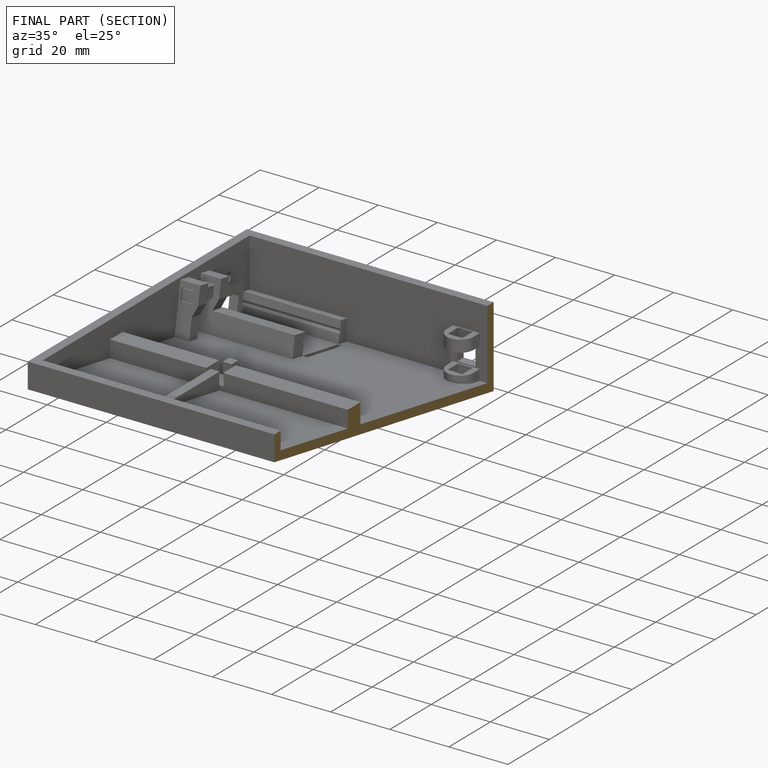
[diagram: finished part — half-section view (interior)]
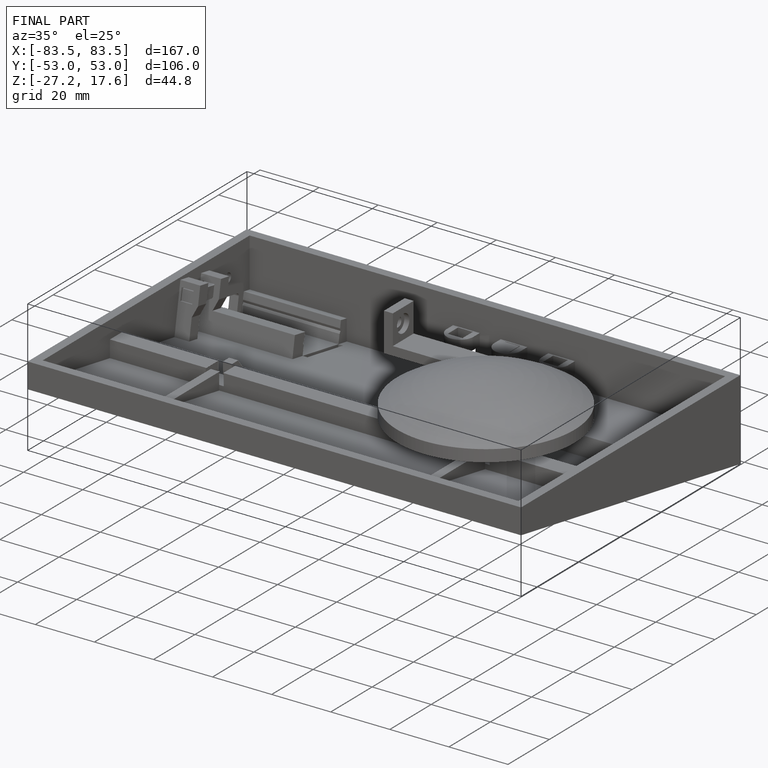
[diagram: finished part — iso view with bounding-box wireframe]
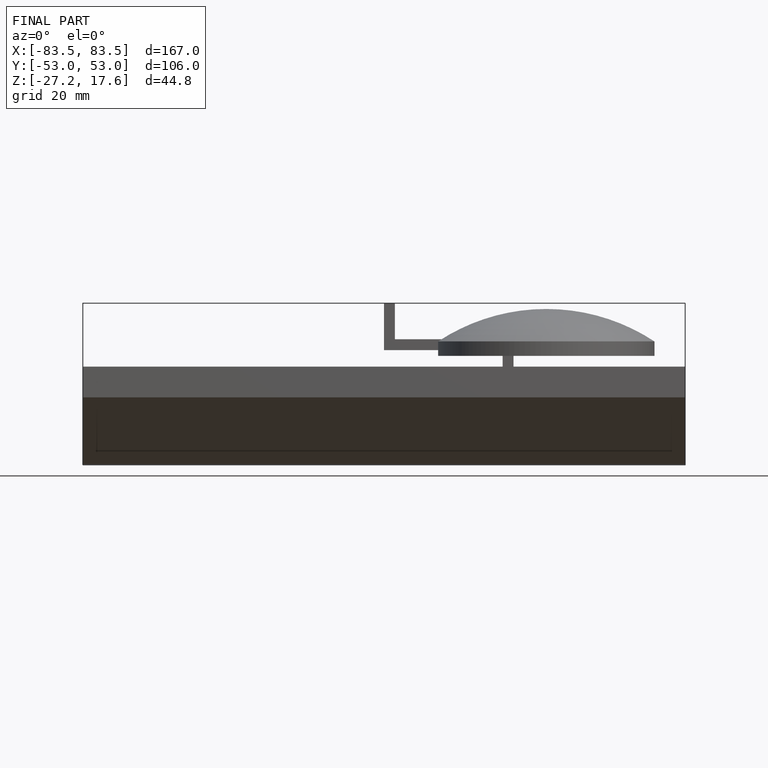
[diagram: finished part — front view with bounding-box wireframe]
